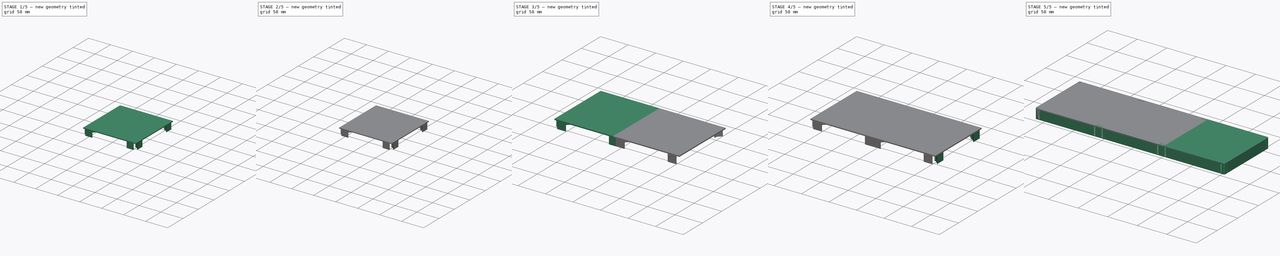
[diagram: build sequence overview — one tinted view per stage of 5, left to right]
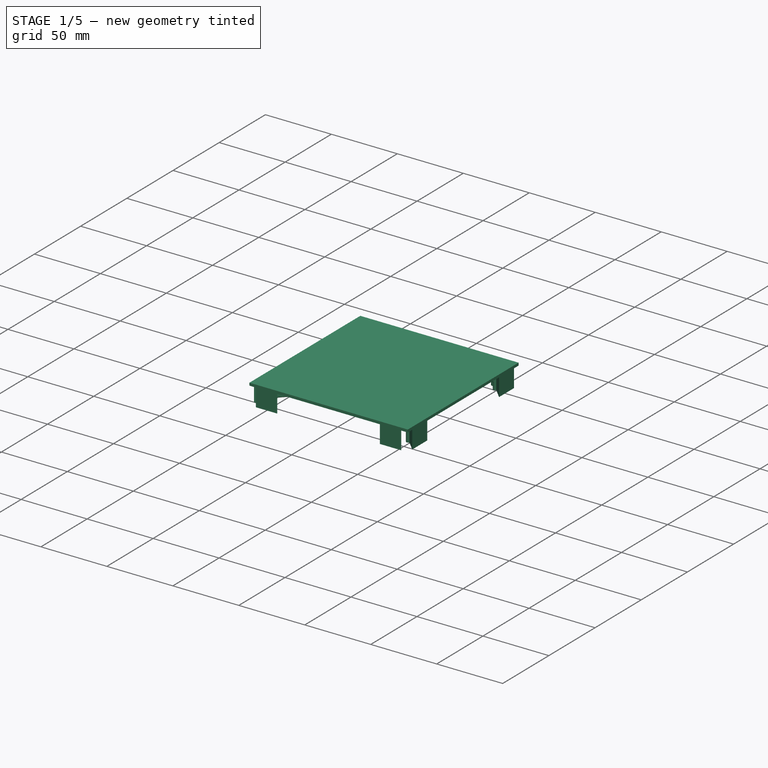
[diagram: stage 1 of 5 — iso view after this stage's code; geometry added in this stage tinted green]
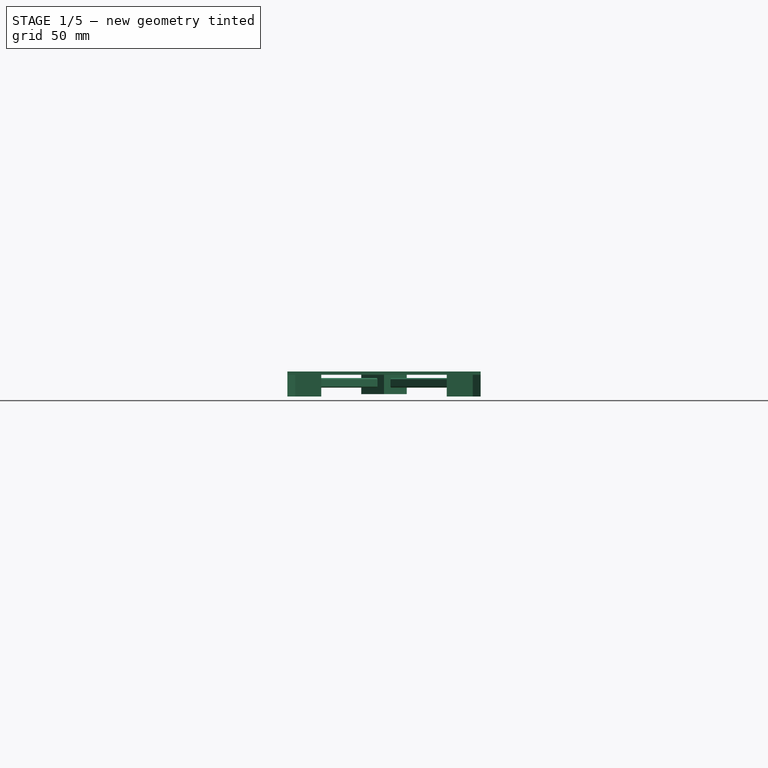
[diagram: stage 1 of 5 — front view after this stage's code; geometry added in this stage tinted green]
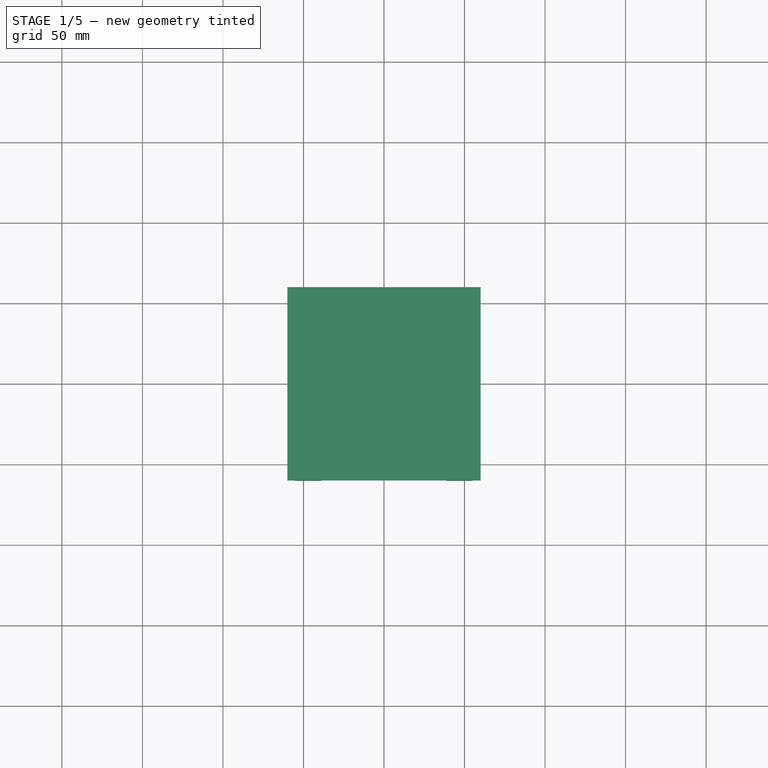
[diagram: stage 1 of 5 — top view after this stage's code; geometry added in this stage tinted green]
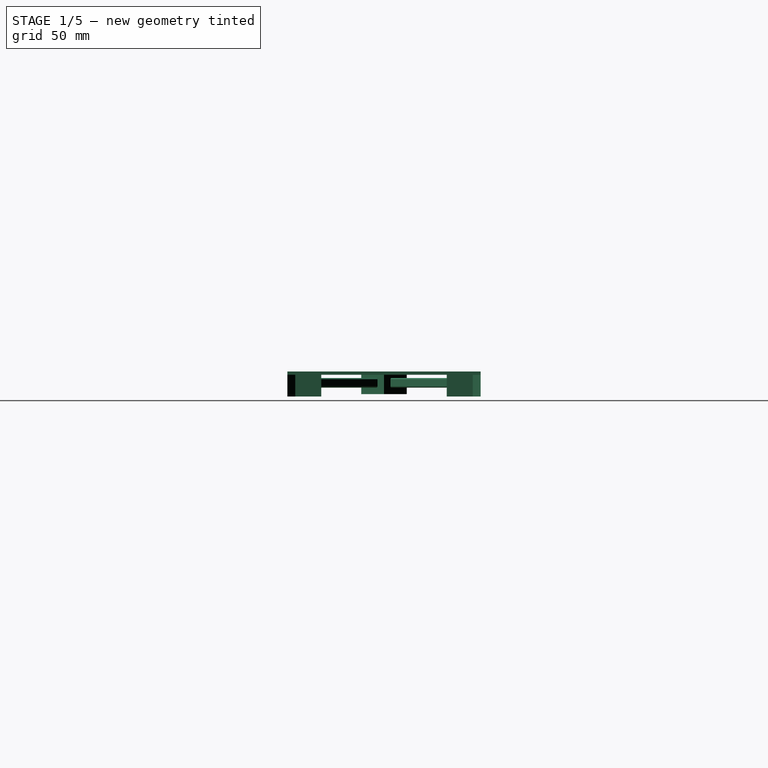
[diagram: stage 1 of 5 — right view after this stage's code; geometry added in this stage tinted green]
FCSTD DOCUMENT  (FreeCAD 0.18R4 (GitTag))
Label: Grid_keyboard
License: All rights reserved
LicenseURL: http://en.wikipedia.org/wiki/All_rights_reserved
objects: Sketcher::SketchObject×31, PartDesign::Pad×26, PartDesign::PolarPattern×12, PartDesign::Chamfer×12, PartDesign::Body×8, PartDesign::Boolean×6, PartDesign::Pocket×4, App::VRMLObject×1, PartDesign::Fillet×1, PartDesign::Hole×1, PartDesign::Mirrored×1
note: 133 computed .brp shape members not serialized (recipe doc carries the construction recipe); baked Part::Feature solids carry a one-line shape summary decoded from their .brp

FEATURE [PartDesign::Body] Body002  label="feature_magent_hole"
  Group = -> [Sketch007,Pad002,Sketch008,Pad003,PolarPattern,Sketch002,Pad004,Sketch003,Pad005,PolarPattern001,Chamfer,Chamfer001,Boolean,Sketch013,Pocket001]
  Origin = -> Origin002
  Placement = pos=(106.68,0,0) rot=(0,0,1;0rad)
  Tip = -> Pocket001
FEATURE [Sketcher::SketchObject] Sketch018
  MapMode = 5
  Support = -> [XY_Plane004]
  sketch-geometry (5):
    g0: LineSegment StartX=-60 StartY=60 StartZ=0 EndX=-60 EndY=-60 EndZ=0
    g1: LineSegment StartX=-60 StartY=-60 StartZ=0 EndX=60 EndY=-60 EndZ=0
    g2: LineSegment StartX=60 StartY=-60 StartZ=0 EndX=60 EndY=60 EndZ=0
    g3: LineSegment StartX=60 StartY=60 StartZ=0 EndX=-60 EndY=60 EndZ=0
    g4: Circle [constr] CenterX=0 CenterY=0 CenterZ=0 NormalX=0 NormalY=0 NormalZ=1 AngleXU=0 Radius=84.8528
  constraints (14):
    c: Coincident(g0,g1)
    c: Coincident(g1,g2)
    c: Coincident(g2,g3)
    c: Coincident(g3,g0)
    c: Equal(g0,g1)
    c: Equal(g0,g2)
    c: Equal(g0,g3)
    c: PointOnObject(g0,g4)
    c: PointOnObject(g1,g4)
    c: PointOnObject(g2,g4)
    c: PointOnObject(g3,g4)
    c: Coincident(g4,g-1)
    c: Horizontal(g3)
    c: DistanceX(g3,g3) = 120
FEATURE [PartDesign::Pad] Pad013
  Length = 2
  Length2 = 100
  Profile = -> Sketch018
  Refine = true
  Type = 0
FEATURE [Sketcher::SketchObject] Sketch020
  MapMode = 5
  Support = -> [XY_Plane005]
  sketch-geometry (5):
    g0: LineSegment StartX=-60 StartY=60 StartZ=0 EndX=-60 EndY=-60 EndZ=0
    g1: LineSegment StartX=-60 StartY=-60 StartZ=0 EndX=60 EndY=-60 EndZ=0
    g2: LineSegment StartX=60 StartY=-60 StartZ=0 EndX=60 EndY=60 EndZ=0
    g3: LineSegment StartX=60 StartY=60 StartZ=0 EndX=-60 EndY=60 EndZ=0
    g4: Circle [constr] CenterX=0 CenterY=0 CenterZ=0 NormalX=0 NormalY=0 NormalZ=1 AngleXU=0 Radius=84.8528
  constraints (14):
    c: Coincident(g0,g1)
    c: Coincident(g1,g2)
    c: Coincident(g2,g3)
    c: Coincident(g3,g0)
    c: Equal(g0,g1)
    c: Equal(g0,g2)
    c: Equal(g0,g3)
    c: PointOnObject(g0,g4)
    c: PointOnObject(g1,g4)
    c: PointOnObject(g2,g4)
    c: PointOnObject(g3,g4)
    c: Coincident(g4,g-1)
    c: Horizontal(g3)
    c: DistanceX(g3,g3) = 120
FEATURE [PartDesign::Pad] Pad017
  Length = 2
  Length2 = 100
  Profile = -> Sketch020
  Refine = true
  Type = 0
FEATURE [Sketcher::SketchObject] Sketch019
  ExternalGeometry = -> [Pad017]
  MapMode = 5
  Placement = pos=(0,0,0) rot=(1,0,0;3.14159rad)
  Support = -> [Pad017]
  expr: Constraints[34] = 3 + 0.15
  expr: Constraints[8] = 53.3 - 1.5 - 0.35
  sketch-geometry (12):
    g0: LineSegment StartX=-55.0741 StartY=60 StartZ=0 EndX=-38.9259 EndY=60 EndZ=0
    g1: LineSegment StartX=-55.0741 StartY=60 StartZ=0 EndX=-47.85 EndY=52.7759 EndZ=0
    g2: LineSegment StartX=-38.9259 StartY=60 StartZ=0 EndX=-46.15 EndY=52.7759 EndZ=0
    g3: ArcOfCircle CenterX=-47 CenterY=51.45 CenterZ=0 NormalX=0 NormalY=0 NormalZ=1 AngleXU=0 Radius=1.575 StartAngle=2.14086 EndAngle=7.28392
    g4: LineSegment [constr] StartX=-47.85 StartY=52.7759 StartZ=0 EndX=-46.15 EndY=52.7759 EndZ=0
    g5: LineSegment StartX=38.9259 StartY=60 StartZ=0 EndX=46.15 EndY=52.7759 EndZ=0
    g6: LineSegment StartX=55.0741 StartY=60 StartZ=0 EndX=47.85 EndY=52.7759 EndZ=0
    g7: LineSegment StartX=38.9259 StartY=60 StartZ=0 EndX=55.0741 EndY=60 EndZ=0
    g8: LineSegment [constr] StartX=46.15 StartY=52.7759 StartZ=0 EndX=47.85 EndY=52.7759 EndZ=0
    g9: ArcOfCircle CenterX=47 CenterY=51.45 CenterZ=0 NormalX=0 NormalY=0 NormalZ=1 AngleXU=0 Radius=1.575 StartAngle=2.14086 EndAngle=7.28392
    g10: LineSegment [constr] StartX=-47 StartY=51.45 StartZ=0 EndX=0 EndY=51.45 EndZ=0
    g11: LineSegment [constr] StartX=0 StartY=51.45 StartZ=0 EndX=47 EndY=51.45 EndZ=0
  constraints (35):
    c: PointOnObject(g0,g-3)
    c: PointOnObject(g0,g-3)
    c: Coincident(g1,g0)
    c: Coincident(g2,g0)
    c: Coincident(g3,g1)
    c: Coincident(g3,g2)
    c: Coincident(g4,g1)
    c: Coincident(g4,g2)
    c: DistanceY(g-1,g3) = 51.45
    c: PointOnObject(g5,g-3)
    c: PointOnObject(g6,g-3)
    c: Coincident(g7,g5)
    c: Coincident(g7,g6)
    c: Coincident(g8,g5)
    c: Coincident(g8,g6)
    c: Horizontal(g8)
    c: Coincident(g9,g5)
    c: Coincident(g9,g6)
    c: Equal(g3,g9)
    c: Coincident(g10,g3)
    c: PointOnObject(g10,g-2)
    c: Horizontal(g10)
    c: Coincident(g11,g10)
    c: Coincident(g11,g9)
    c: Equal(g10,g11)
    c: DistanceX(g3,g9) = 94
    c: Equal(g2,g1)
    c: DistanceX(g4,g4) = 1.7
    c: Horizontal(g4)
    c: Angle(g1,g0) = 0.785398
    c: Horizontal(g11)
    c: Equal(g8,g4)
    c: Equal(g6,g5)
    c: Equal(g5,g2)
    c: Diameter(g3) = 3.15
FEATURE [PartDesign::Pad] Pad010
  BaseFeature = -> Pad017
  Length = 13.5
  Length2 = 100
  Profile = -> Sketch019
  Refine = true
  Type = 0
FEATURE [PartDesign::PolarPattern] PolarPattern007
  Angle = 360
  Axis = -> Z_Axis005
  BaseFeature = -> Pad010
  Occurrences = 4
  Originals = -> [Pad010]
  Refine = true
FEATURE [Sketcher::SketchObject] Sketch015
  MapMode = 5
  Placement = pos=(0,0,0) rot=(1,0,0;3.14159rad)
  Support = -> [PolarPattern007]
  sketch-geometry (5):
    g0: LineSegment StartX=0 StartY=14.1421 StartZ=0 EndX=-14.1421 EndY=-7.46e-14 EndZ=0
    g1: LineSegment StartX=-14.1421 StartY=-7.46e-14 StartZ=0 EndX=1.42e-14 EndY=-14.1421 EndZ=0
    g2: LineSegment StartX=1.42e-14 StartY=-14.1421 StartZ=0 EndX=14.1421 EndY=-7.1e-15 EndZ=0
    g3: LineSegment StartX=14.1421 StartY=-7.1e-15 StartZ=0 EndX=0 EndY=14.1421 EndZ=0
    g4: Circle [constr] CenterX=0 CenterY=0 CenterZ=0 NormalX=0 NormalY=0 NormalZ=1 AngleXU=0 Radius=14.1421
  constraints (14):
    c: Coincident(g0,g1)
    c: Coincident(g1,g2)
    c: Coincident(g2,g3)
    c: Coincident(g3,g0)
    c: Equal(g0,g1)
    c: Equal(g0,g2)
    c: Equal(g0,g3)
    c: PointOnObject(g0,g4)
    c: PointOnObject(g1,g4)
    c: PointOnObject(g2,g4)
    c: PointOnObject(g3,g4)
    c: Coincident(g4,g-1)
    c: PointOnObject(g0,g-2)
    c: Distance(g0) = 20
FEATURE [PartDesign::Pad] Pad012
  BaseFeature = -> PolarPattern007
  Length = 12
  Length2 = 100
  Profile = -> Sketch015
  Refine = true
  Type = 0
FEATURE [Sketcher::SketchObject] Sketch017
  MapMode = 5
  Placement = pos=(7.07107,7.07107,0) rot=(0.281085,0.678598,0.678598;2.59356rad)
  Support = -> [Pad012]
  sketch-geometry (8):
    g0: ArcOfCircle CenterX=-3.325 CenterY=-3 CenterZ=0 NormalX=0 NormalY=0 NormalZ=1 AngleXU=0 Radius=1 StartAngle=2e-16 EndAngle=3.14159
    g1: ArcOfCircle CenterX=-3.325 CenterY=-7 CenterZ=0 NormalX=0 NormalY=0 NormalZ=1 AngleXU=0 Radius=1 StartAngle=3.14159 EndAngle=6.28319
    g2: LineSegment StartX=-4.325 StartY=-3 StartZ=0 EndX=-4.325 EndY=-7 EndZ=0
    g3: LineSegment StartX=-2.325 StartY=-3 StartZ=0 EndX=-2.325 EndY=-7 EndZ=0
    g4: ArcOfCircle CenterX=3.325 CenterY=-3 CenterZ=0 NormalX=0 NormalY=0 NormalZ=1 AngleXU=0 Radius=1 StartAngle=3e-16 EndAngle=3.14159
    g5: ArcOfCircle CenterX=3.325 CenterY=-7 CenterZ=0 NormalX=0 NormalY=0 NormalZ=1 AngleXU=0 Radius=1 StartAngle=3.14159 EndAngle=6.28319
    g6: LineSegment StartX=2.325 StartY=-3 StartZ=0 EndX=2.325 EndY=-7 EndZ=0
    g7: LineSegment StartX=4.325 StartY=-3 StartZ=0 EndX=4.325 EndY=-7 EndZ=0
  constraints (18):
    c: Tangent(g0,g3) = 1.5708
    c: Tangent(g0,g2) = -1.5708
    c: Tangent(g2,g1) = -1.5708
    c: Tangent(g3,g1) = 1.5708
    c: Vertical(g2)
    c: Equal(g0,g1)
    c: Tangent(g4,g7) = 1.5708
    c: Tangent(g4,g6) = -1.5708
    c: Tangent(g6,g5) = -1.5708
    c: Tangent(g7,g5) = 1.5708
    c: Equal(g4,g5)
    c: Symmetric(g0,g4,g-2)
    c: Symmetric(g5,g1,g-2)
    c: Radius(g5) = 1
    c: Equal(g5,g1)
    c: DistanceY(g3,g3) = 4
    c: DistanceX(g0,g-1) = 3.325
    c: DistanceY(g0,g-1) = 3
FEATURE [PartDesign::Pad] Pad011
  BaseFeature = -> Pad012
  Length = 60
  Length2 = 100
  Profile = -> Sketch017
  Refine = true
  Type = 0
FEATURE [Sketcher::SketchObject] Sketch021
  ExternalGeometry = -> [Pad013]
  MapMode = 5
  Placement = pos=(0,0,0) rot=(1,0,0;3.14159rad)
  Support = -> [Pad013]
  expr: Constraints[34] = 3 + 0.15
  expr: Constraints[8] = 53.3 - 1.5 - 0.35
  sketch-geometry (12):
    g0: LineSegment StartX=-55.0741 StartY=60 StartZ=0 EndX=-38.9259 EndY=60 EndZ=0
    g1: LineSegment StartX=-55.0741 StartY=60 StartZ=0 EndX=-47.85 EndY=52.7759 EndZ=0
    g2: LineSegment StartX=-38.9259 StartY=60 StartZ=0 EndX=-46.15 EndY=52.7759 EndZ=0
    g3: ArcOfCircle CenterX=-47 CenterY=51.45 CenterZ=0 NormalX=0 NormalY=0 NormalZ=1 AngleXU=0 Radius=1.575 StartAngle=2.14086 EndAngle=7.28392
    g4: LineSegment [constr] StartX=-47.85 StartY=52.7759 StartZ=0 EndX=-46.15 EndY=52.7759 EndZ=0
    g5: LineSegment StartX=38.9259 StartY=60 StartZ=0 EndX=46.15 EndY=52.7759 EndZ=0
    g6: LineSegment StartX=55.0741 StartY=60 StartZ=0 EndX=47.85 EndY=52.7759 EndZ=0
    g7: LineSegment StartX=38.9259 StartY=60 StartZ=0 EndX=55.0741 EndY=60 EndZ=0
    g8: LineSegment [constr] StartX=46.15 StartY=52.7759 StartZ=0 EndX=47.85 EndY=52.7759 EndZ=0
    g9: ArcOfCircle CenterX=47 CenterY=51.45 CenterZ=0 NormalX=0 NormalY=0 NormalZ=1 AngleXU=0 Radius=1.575 StartAngle=2.14086 EndAngle=7.28392
    g10: LineSegment [constr] StartX=-47 StartY=51.45 StartZ=0 EndX=0 EndY=51.45 EndZ=0
    g11: LineSegment [constr] StartX=0 StartY=51.45 StartZ=0 EndX=47 EndY=51.45 EndZ=0
  constraints (35):
    c: PointOnObject(g0,g-3)
    c: PointOnObject(g0,g-3)
    c: Coincident(g1,g0)
    c: Coincident(g2,g0)
    c: Coincident(g3,g1)
    c: Coincident(g3,g2)
    c: Coincident(g4,g1)
    c: Coincident(g4,g2)
    c: DistanceY(g-1,g3) = 51.45
    c: PointOnObject(g5,g-3)
    c: PointOnObject(g6,g-3)
    c: Coincident(g7,g5)
    c: Coincident(g7,g6)
    c: Coincident(g8,g5)
    c: Coincident(g8,g6)
    c: Horizontal(g8)
    c: Coincident(g9,g5)
    c: Coincident(g9,g6)
    c: Equal(g3,g9)
    c: Coincident(g10,g3)
    c: PointOnObject(g10,g-2)
    c: Horizontal(g10)
    c: Coincident(g11,g10)
    c: Coincident(g11,g9)
    c: Equal(g10,g11)
    c: DistanceX(g3,g9) = 94
    c: Equal(g2,g1)
    c: DistanceX(g4,g4) = 1.7
    c: Horizontal(g4)
    c: Angle(g1,g0) = 0.785398
    c: Horizontal(g11)
    c: Equal(g8,g4)
    c: Equal(g6,g5)
    c: Equal(g5,g2)
    c: Diameter(g3) = 3.15
FEATURE [PartDesign::Pad] Pad014
  BaseFeature = -> Pad013
  Length = 13.5
  Length2 = 100
  Profile = -> Sketch021
  Refine = true
  Type = 0
FEATURE [PartDesign::PolarPattern] PolarPattern005
  Angle = 360
  Axis = -> Z_Axis004
  BaseFeature = -> Pad014
  Occurrences = 4
  Originals = -> [Pad014]
  Refine = true
FEATURE [Sketcher::SketchObject] Sketch014
  MapMode = 5
  Placement = pos=(0,0,0) rot=(1,0,0;3.14159rad)
  Support = -> [PolarPattern005]
  sketch-geometry (5):
    g0: LineSegment StartX=0 StartY=14.1421 StartZ=0 EndX=-14.1421 EndY=-7.46e-14 EndZ=0
    g1: LineSegment StartX=-14.1421 StartY=-7.46e-14 StartZ=0 EndX=1.42e-14 EndY=-14.1421 EndZ=0
    g2: LineSegment StartX=1.42e-14 StartY=-14.1421 StartZ=0 EndX=14.1421 EndY=-7.1e-15 EndZ=0
    g3: LineSegment StartX=14.1421 StartY=-7.1e-15 StartZ=0 EndX=0 EndY=14.1421 EndZ=0
    g4: Circle [constr] CenterX=0 CenterY=0 CenterZ=0 NormalX=0 NormalY=0 NormalZ=1 AngleXU=0 Radius=14.1421
  constraints (14):
    c: Coincident(g0,g1)
    c: Coincident(g1,g2)
    c: Coincident(g2,g3)
    c: Coincident(g3,g0)
    c: Equal(g0,g1)
    c: Equal(g0,g2)
    c: Equal(g0,g3)
    c: PointOnObject(g0,g4)
    c: PointOnObject(g1,g4)
    c: PointOnObject(g2,g4)
    c: PointOnObject(g3,g4)
    c: Coincident(g4,g-1)
    c: PointOnObject(g0,g-2)
    c: Distance(g0) = 20
FEATURE [PartDesign::Pad] Pad016
  BaseFeature = -> PolarPattern005
  Length = 12
  Length2 = 100
  Profile = -> Sketch014
  Refine = true
  Type = 0
FEATURE [Sketcher::SketchObject] Sketch016
  MapMode = 5
  Placement = pos=(7.07107,7.07107,0) rot=(0.281085,0.678598,0.678598;2.59356rad)
  Support = -> [Pad016]
  sketch-geometry (8):
    g0: ArcOfCircle CenterX=-3.325 CenterY=-3 CenterZ=0 NormalX=0 NormalY=0 NormalZ=1 AngleXU=0 Radius=1 StartAngle=2e-16 EndAngle=3.14159
    g1: ArcOfCircle CenterX=-3.325 CenterY=-7 CenterZ=0 NormalX=0 NormalY=0 NormalZ=1 AngleXU=0 Radius=1 StartAngle=3.14159 EndAngle=6.28319
    g2: LineSegment StartX=-4.325 StartY=-3 StartZ=0 EndX=-4.325 EndY=-7 EndZ=0
    g3: LineSegment StartX=-2.325 StartY=-3 StartZ=0 EndX=-2.325 EndY=-7 EndZ=0
    g4: ArcOfCircle CenterX=3.325 CenterY=-3 CenterZ=0 NormalX=0 NormalY=0 NormalZ=1 AngleXU=0 Radius=1 StartAngle=3e-16 EndAngle=3.14159
    g5: ArcOfCircle CenterX=3.325 CenterY=-7 CenterZ=0 NormalX=0 NormalY=0 NormalZ=1 AngleXU=0 Radius=1 StartAngle=3.14159 EndAngle=6.28319
    g6: LineSegment StartX=2.325 StartY=-3 StartZ=0 EndX=2.325 EndY=-7 EndZ=0
    g7: LineSegment StartX=4.325 StartY=-3 StartZ=0 EndX=4.325 EndY=-7 EndZ=0
  constraints (18):
    c: Tangent(g0,g3) = 1.5708
    c: Tangent(g0,g2) = -1.5708
    c: Tangent(g2,g1) = -1.5708
    c: Tangent(g3,g1) = 1.5708
    c: Vertical(g2)
    c: Equal(g0,g1)
    c: Tangent(g4,g7) = 1.5708
    c: Tangent(g4,g6) = -1.5708
    c: Tangent(g6,g5) = -1.5708
    c: Tangent(g7,g5) = 1.5708
    c: Equal(g4,g5)
    c: Symmetric(g0,g4,g-2)
    c: Symmetric(g5,g1,g-2)
    c: Radius(g5) = 1
    c: Equal(g5,g1)
    c: DistanceY(g3,g3) = 4
    c: DistanceX(g0,g-1) = 3.325
    c: DistanceY(g0,g-1) = 3
FEATURE [PartDesign::Pad] Pad015
  BaseFeature = -> Pad016
  Length = 60
  Length2 = 100
  Profile = -> Sketch016
  Refine = true
  Type = 0
FEATURE [PartDesign::PolarPattern] PolarPattern004
  Angle = 360
  Axis = -> Z_Axis004
  BaseFeature = -> Pad015
  Occurrences = 4
  Originals = -> [Pad015]
  Refine = true
FEATURE [PartDesign::Chamfer] Chamfer005
  Base = -> PolarPattern004 [Edge101,Edge94,Edge103,Edge114,Edge125,Edge132,Edge84,Edge85,Edge59,Edge60,Edge91,Edge89,Edge64,Edge66,Edge123,Edge113]
  BaseFeature = -> PolarPattern004
  Size = 0.5
FEATURE [PartDesign::Body] Body004  label="feature_magent_hole002"
  Group = -> [Sketch020,Pad017,Sketch019,Pad010,PolarPattern007,Sketch015,Pad012,Sketch017,Pad011,PolarPattern006,Chamfer006,Chamfer004]
  Origin = -> Origin005
  Tip = -> Chamfer004
FEATURE [PartDesign::Chamfer] Chamfer007
  Base = -> Chamfer005 [Edge156,Edge175,Edge141,Edge117,Edge170,Edge188,Edge104,Edge202]
  BaseFeature = -> Chamfer005
  Size = 0.5
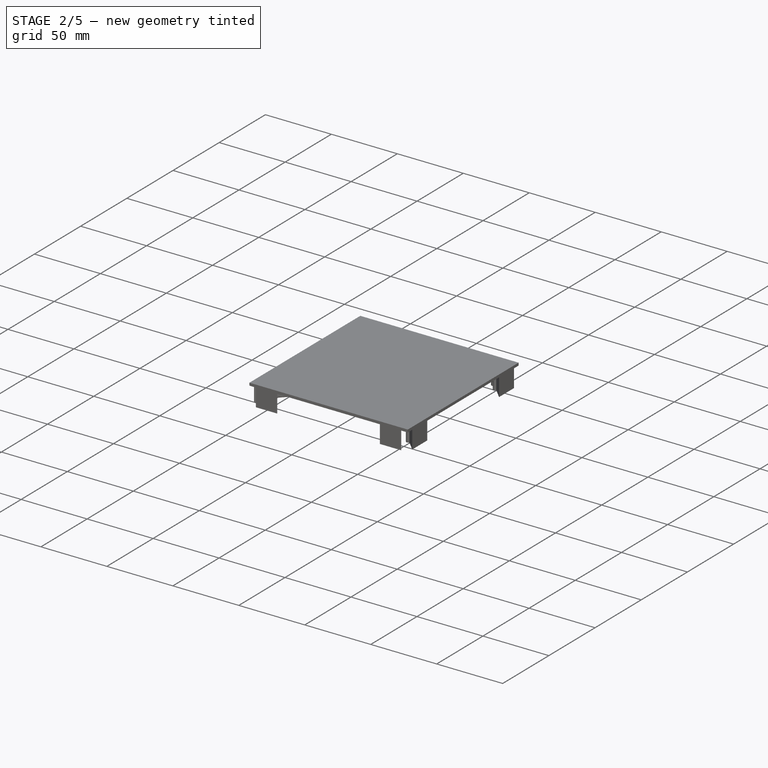
[diagram: stage 2 of 5 — iso view after this stage's code; geometry added in this stage tinted green]
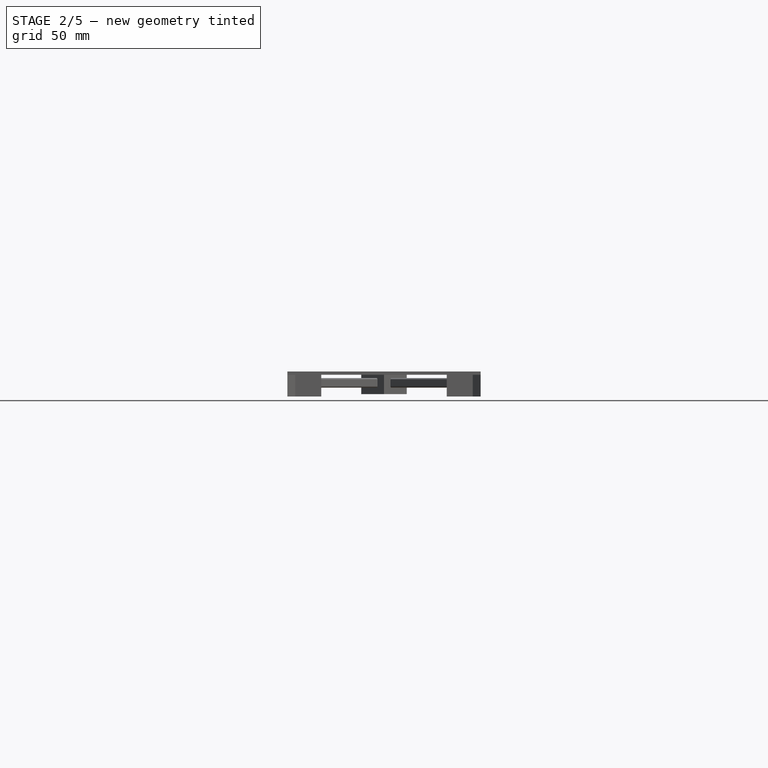
[diagram: stage 2 of 5 — front view after this stage's code; geometry added in this stage tinted green]
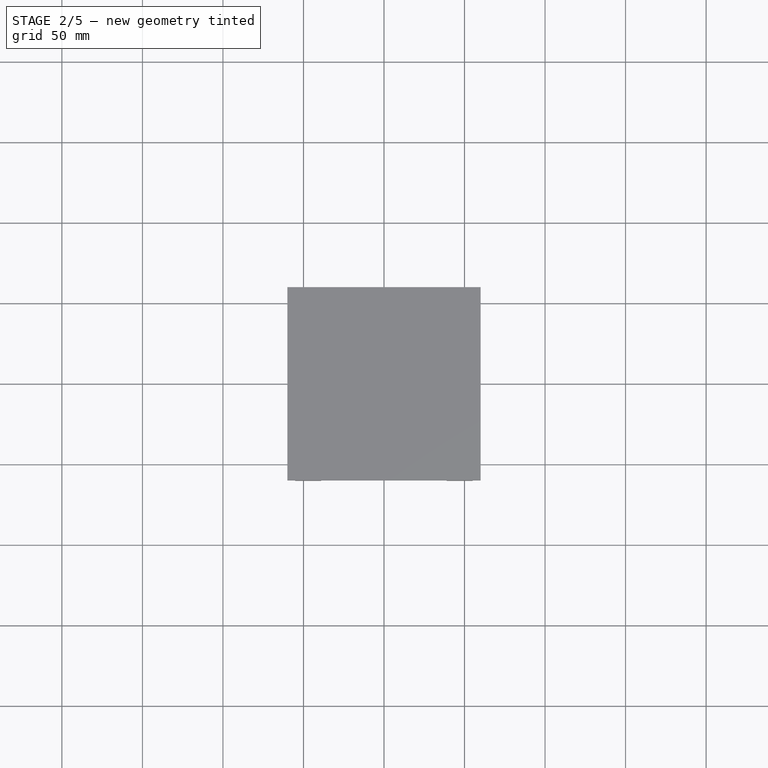
[diagram: stage 2 of 5 — top view after this stage's code; geometry added in this stage tinted green]
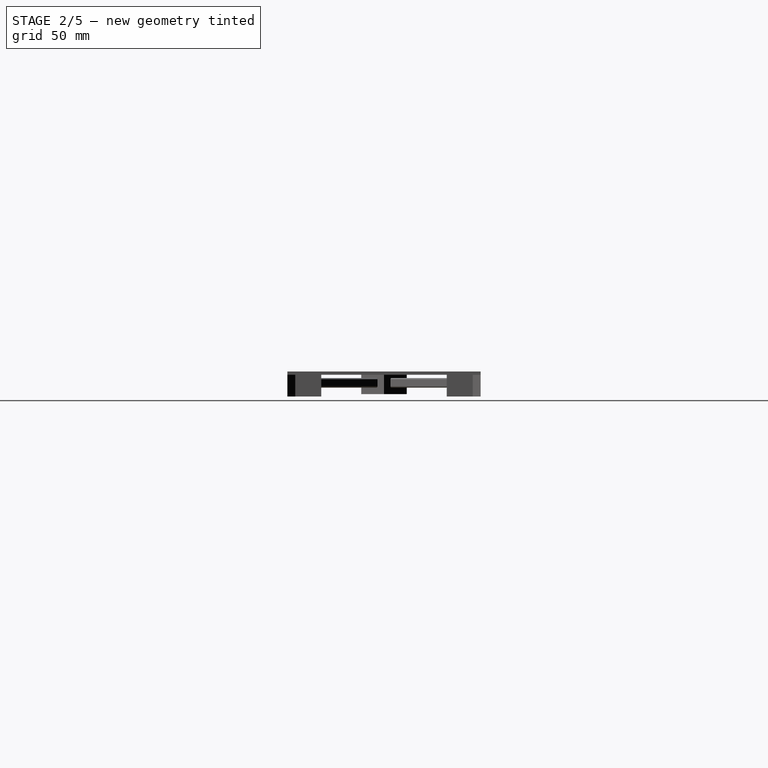
[diagram: stage 2 of 5 — right view after this stage's code; geometry added in this stage tinted green]
FEATURE [PartDesign::PolarPattern] PolarPattern006
  Angle = 360
  Axis = -> Z_Axis005
  BaseFeature = -> Pad011
  Occurrences = 4
  Originals = -> [Pad011]
  Refine = true
FEATURE [PartDesign::Chamfer] Chamfer006
  Base = -> PolarPattern006 [Edge101,Edge94,Edge103,Edge114,Edge125,Edge132,Edge84,Edge85,Edge59,Edge60,Edge91,Edge89,Edge64,Edge66,Edge123,Edge113]
  BaseFeature = -> PolarPattern006
  Size = 0.5
FEATURE [PartDesign::Chamfer] Chamfer004
  Base = -> Chamfer006 [Edge156,Edge175,Edge141,Edge117,Edge170,Edge188,Edge104,Edge202]
  BaseFeature = -> Chamfer006
  Size = 0.5
FEATURE [PartDesign::Boolean] Boolean001
  BaseFeature = -> Chamfer007
  Group = -> [Body004]
  Type = 0
FEATURE [Sketcher::SketchObject] Sketch022
  MapMode = 5
  Placement = pos=(0,0,0) rot=(1,0,0;3.14159rad)
  Support = -> [Boolean001]
  sketch-geometry (3):
    g0: LineSegment StartX=-88.9042 StartY=88.9042 StartZ=0 EndX=0 EndY=0 EndZ=0
    g1: LineSegment StartX=0 StartY=0 StartZ=0 EndX=-88.9042 EndY=-88.9042 EndZ=0
    g2: LineSegment StartX=-88.9042 StartY=-88.9042 StartZ=0 EndX=-88.9042 EndY=88.9042 EndZ=0
  constraints (7):
    c: Coincident(g0,g-1)
    c: Coincident(g0,g1)
    c: Coincident(g1,g2)
    c: Coincident(g2,g0)
    c: Vertical(g2)
    c: Angle(g-1,g0) = 2.35619
    c: Perpendicular(g0,g1)
FEATURE [Sketcher::SketchObject] Sketch027
  MapMode = 5
  Support = -> [XY_Plane006]
  sketch-geometry (5):
    g0: LineSegment StartX=-60 StartY=60 StartZ=0 EndX=-60 EndY=-60 EndZ=0
    g1: LineSegment StartX=-60 StartY=-60 StartZ=0 EndX=60 EndY=-60 EndZ=0
    g2: LineSegment StartX=60 StartY=-60 StartZ=0 EndX=60 EndY=60 EndZ=0
    g3: LineSegment StartX=60 StartY=60 StartZ=0 EndX=-60 EndY=60 EndZ=0
    g4: Circle [constr] CenterX=0 CenterY=0 CenterZ=0 NormalX=0 NormalY=0 NormalZ=1 AngleXU=0 Radius=84.8528
  constraints (14):
    c: Coincident(g0,g1)
    c: Coincident(g1,g2)
    c: Coincident(g2,g3)
    c: Coincident(g3,g0)
    c: Equal(g0,g1)
    c: Equal(g0,g2)
    c: Equal(g0,g3)
    c: PointOnObject(g0,g4)
    c: PointOnObject(g1,g4)
    c: PointOnObject(g2,g4)
    c: PointOnObject(g3,g4)
    c: Coincident(g4,g-1)
    c: Horizontal(g3)
    c: DistanceX(g3,g3) = 120
FEATURE [PartDesign::Pad] Pad021
  Length = 2
  Length2 = 100
  Profile = -> Sketch027
  Refine = true
  Type = 0
FEATURE [Sketcher::SketchObject] Sketch030
  ExternalGeometry = -> [Pad021]
  MapMode = 5
  Placement = pos=(0,0,0) rot=(1,0,0;3.14159rad)
  Support = -> [Pad021]
  expr: Constraints[34] = 3 + 0.15
  expr: Constraints[8] = 53.3 - 1.5 - 0.35
  sketch-geometry (12):
    g0: LineSegment StartX=-55.0741 StartY=60 StartZ=0 EndX=-38.9259 EndY=60 EndZ=0
    g1: LineSegment StartX=-55.0741 StartY=60 StartZ=0 EndX=-47.85 EndY=52.7759 EndZ=0
    g2: LineSegment StartX=-38.9259 StartY=60 StartZ=0 EndX=-46.15 EndY=52.7759 EndZ=0
    g3: ArcOfCircle CenterX=-47 CenterY=51.45 CenterZ=0 NormalX=0 NormalY=0 NormalZ=1 AngleXU=0 Radius=1.575 StartAngle=2.14086 EndAngle=7.28392
    g4: LineSegment [constr] StartX=-47.85 StartY=52.7759 StartZ=0 EndX=-46.15 EndY=52.7759 EndZ=0
    g5: LineSegment StartX=38.9259 StartY=60 StartZ=0 EndX=46.15 EndY=52.7759 EndZ=0
    g6: LineSegment StartX=55.0741 StartY=60 StartZ=0 EndX=47.85 EndY=52.7759 EndZ=0
    g7: LineSegment StartX=38.9259 StartY=60 StartZ=0 EndX=55.0741 EndY=60 EndZ=0
    g8: LineSegment [constr] StartX=46.15 StartY=52.7759 StartZ=0 EndX=47.85 EndY=52.7759 EndZ=0
    g9: ArcOfCircle CenterX=47 CenterY=51.45 CenterZ=0 NormalX=0 NormalY=0 NormalZ=1 AngleXU=0 Radius=1.575 StartAngle=2.14086 EndAngle=7.28392
    g10: LineSegment [constr] StartX=-47 StartY=51.45 StartZ=0 EndX=0 EndY=51.45 EndZ=0
    g11: LineSegment [constr] StartX=0 StartY=51.45 StartZ=0 EndX=47 EndY=51.45 EndZ=0
  constraints (35):
    c: PointOnObject(g0,g-3)
    c: PointOnObject(g0,g-3)
    c: Coincident(g1,g0)
    c: Coincident(g2,g0)
    c: Coincident(g3,g1)
    c: Coincident(g3,g2)
    c: Coincident(g4,g1)
    c: Coincident(g4,g2)
    c: DistanceY(g-1,g3) = 51.45
    c: PointOnObject(g5,g-3)
    c: PointOnObject(g6,g-3)
    c: Coincident(g7,g5)
    c: Coincident(g7,g6)
    c: Coincident(g8,g5)
    c: Coincident(g8,g6)
    c: Horizontal(g8)
    c: Coincident(g9,g5)
    c: Coincident(g9,g6)
    c: Equal(g3,g9)
    c: Coincident(g10,g3)
    c: PointOnObject(g10,g-2)
    c: Horizontal(g10)
    c: Coincident(g11,g10)
    c: Coincident(g11,g9)
    c: Equal(g10,g11)
    c: DistanceX(g3,g9) = 94
    c: Equal(g2,g1)
    c: DistanceX(g4,g4) = 1.7
    c: Horizontal(g4)
    c: Angle(g1,g0) = 0.785398
    c: Horizontal(g11)
    c: Equal(g8,g4)
    c: Equal(g6,g5)
    c: Equal(g5,g2)
    c: Diameter(g3) = 3.15
FEATURE [PartDesign::Pad] Pad022
  BaseFeature = -> Pad021
  Length = 13.5
  Length2 = 100
  Profile = -> Sketch030
  Refine = true
  Type = 0
FEATURE [PartDesign::PolarPattern] PolarPattern009
  Angle = 360
  Axis = -> Z_Axis006
  BaseFeature = -> Pad022
  Occurrences = 4
  Originals = -> [Pad022]
  Refine = true
FEATURE [Sketcher::SketchObject] Sketch023
  MapMode = 5
  Placement = pos=(0,0,0) rot=(1,0,0;3.14159rad)
  Support = -> [PolarPattern009]
  sketch-geometry (5):
    g0: LineSegment StartX=0 StartY=14.1421 StartZ=0 EndX=-14.1421 EndY=-7.46e-14 EndZ=0
    g1: LineSegment StartX=-14.1421 StartY=-7.46e-14 StartZ=0 EndX=1.42e-14 EndY=-14.1421 EndZ=0
    g2: LineSegment StartX=1.42e-14 StartY=-14.1421 StartZ=0 EndX=14.1421 EndY=-7.1e-15 EndZ=0
    g3: LineSegment StartX=14.1421 StartY=-7.1e-15 StartZ=0 EndX=0 EndY=14.1421 EndZ=0
    g4: Circle [constr] CenterX=0 CenterY=0 CenterZ=0 NormalX=0 NormalY=0 NormalZ=1 AngleXU=0 Radius=14.1421
  constraints (14):
    c: Coincident(g0,g1)
    c: Coincident(g1,g2)
    c: Coincident(g2,g3)
    c: Coincident(g3,g0)
    c: Equal(g0,g1)
    c: Equal(g0,g2)
    c: Equal(g0,g3)
    c: PointOnObject(g0,g4)
    c: PointOnObject(g1,g4)
    c: PointOnObject(g2,g4)
    c: PointOnObject(g3,g4)
    c: Coincident(g4,g-1)
    c: PointOnObject(g0,g-2)
    c: Distance(g0) = 20
FEATURE [PartDesign::Pad] Pad024
  BaseFeature = -> PolarPattern009
  Length = 12
  Length2 = 100
  Profile = -> Sketch023
  Refine = true
  Type = 0
FEATURE [Sketcher::SketchObject] Sketch025
  MapMode = 5
  Placement = pos=(7.07107,7.07107,0) rot=(0.281085,0.678598,0.678598;2.59356rad)
  Support = -> [Pad024]
  sketch-geometry (8):
    g0: ArcOfCircle CenterX=-3.325 CenterY=-3 CenterZ=0 NormalX=0 NormalY=0 NormalZ=1 AngleXU=0 Radius=1 StartAngle=2e-16 EndAngle=3.14159
    g1: ArcOfCircle CenterX=-3.325 CenterY=-7 CenterZ=0 NormalX=0 NormalY=0 NormalZ=1 AngleXU=0 Radius=1 StartAngle=3.14159 EndAngle=6.28319
    g2: LineSegment StartX=-4.325 StartY=-3 StartZ=0 EndX=-4.325 EndY=-7 EndZ=0
    g3: LineSegment StartX=-2.325 StartY=-3 StartZ=0 EndX=-2.325 EndY=-7 EndZ=0
    g4: ArcOfCircle CenterX=3.325 CenterY=-3 CenterZ=0 NormalX=0 NormalY=0 NormalZ=1 AngleXU=0 Radius=1 StartAngle=3e-16 EndAngle=3.14159
    g5: ArcOfCircle CenterX=3.325 CenterY=-7 CenterZ=0 NormalX=0 NormalY=0 NormalZ=1 AngleXU=0 Radius=1 StartAngle=3.14159 EndAngle=6.28319
    g6: LineSegment StartX=2.325 StartY=-3 StartZ=0 EndX=2.325 EndY=-7 EndZ=0
    g7: LineSegment StartX=4.325 StartY=-3 StartZ=0 EndX=4.325 EndY=-7 EndZ=0
  constraints (18):
    c: Tangent(g0,g3) = 1.5708
    c: Tangent(g0,g2) = -1.5708
    c: Tangent(g2,g1) = -1.5708
    c: Tangent(g3,g1) = 1.5708
    c: Vertical(g2)
    c: Equal(g0,g1)
    c: Tangent(g4,g7) = 1.5708
    c: Tangent(g4,g6) = -1.5708
    c: Tangent(g6,g5) = -1.5708
    c: Tangent(g7,g5) = 1.5708
    c: Equal(g4,g5)
    c: Symmetric(g0,g4,g-2)
    c: Symmetric(g5,g1,g-2)
    c: Radius(g5) = 1
    c: Equal(g5,g1)
    c: DistanceY(g3,g3) = 4
    c: DistanceX(g0,g-1) = 3.325
    c: DistanceY(g0,g-1) = 3
FEATURE [PartDesign::Pad] Pad023
  BaseFeature = -> Pad024
  Length = 60
  Length2 = 100
  Profile = -> Sketch025
  Refine = true
  Type = 0
FEATURE [PartDesign::PolarPattern] PolarPattern008
  Angle = 360
  Axis = -> Z_Axis006
  BaseFeature = -> Pad023
  Occurrences = 4
  Originals = -> [Pad023]
  Refine = true
FEATURE [PartDesign::Body] Body007  label="feature_magent_hole005"
  Group = -> [Sketch027,Pad021,Sketch030,Pad022,PolarPattern009,Sketch023,Pad024,Sketch025,Pad023,PolarPattern008,Chamfer009,Chamfer011,Boolean002,Sketch031,Pocket002]
  Origin = -> Origin006
  Placement = pos=(-106.68,0,0) rot=(0,0,1;3.14159rad)
  Tip = -> Pocket002
FEATURE [PartDesign::Pocket] Pocket003
  BaseFeature = -> Boolean001
  Length = 5
  Length2 = 100
  Profile = -> Sketch022
  Reversed = true
  Type = 1
FEATURE [PartDesign::Mirrored] Mirrored
  BaseFeature = -> Pocket003
  MirrorPlane = -> YZ_Plane004
  Originals = -> [Pocket003]
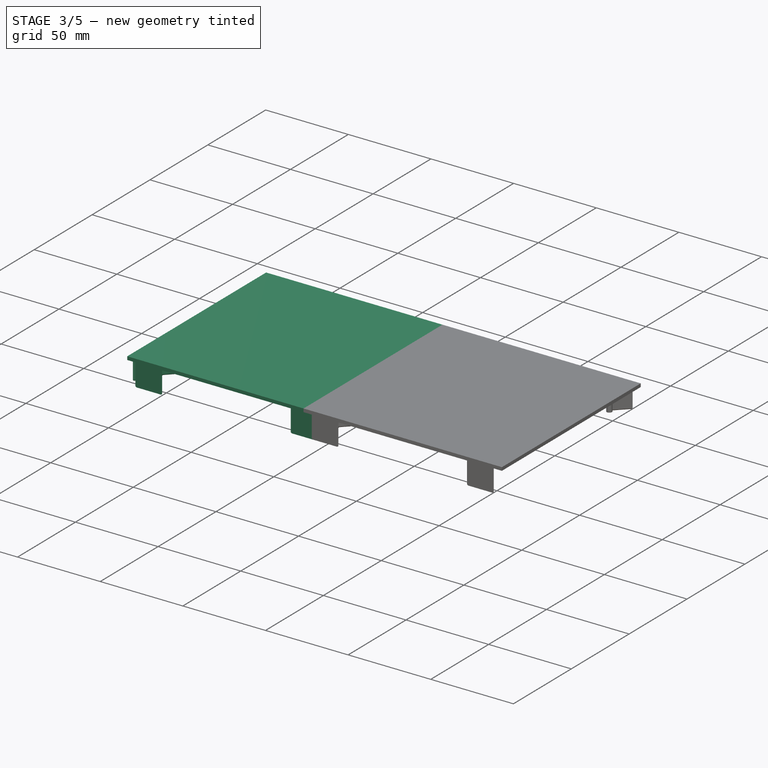
[diagram: stage 3 of 5 — iso view after this stage's code; geometry added in this stage tinted green]
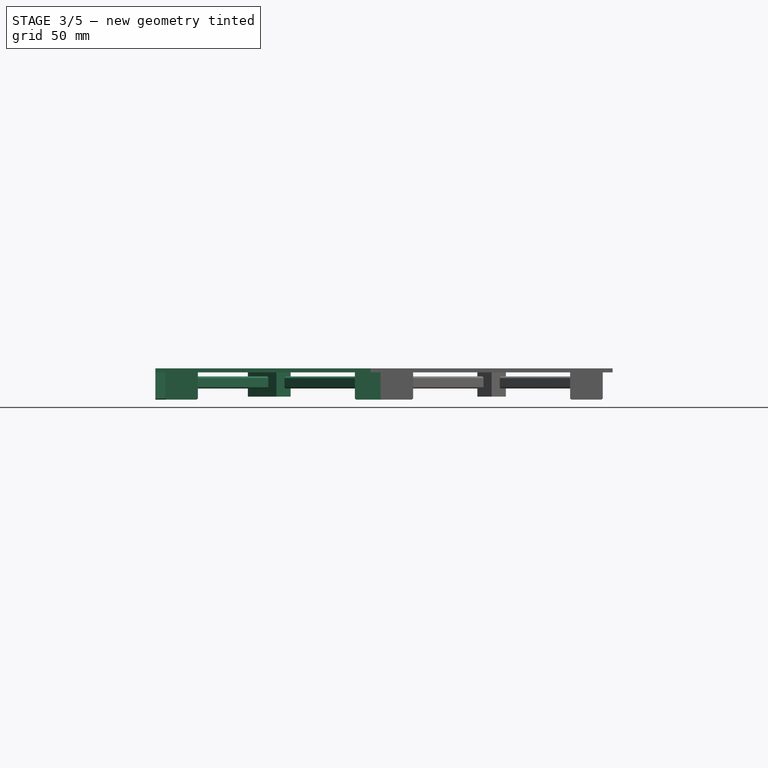
[diagram: stage 3 of 5 — front view after this stage's code; geometry added in this stage tinted green]
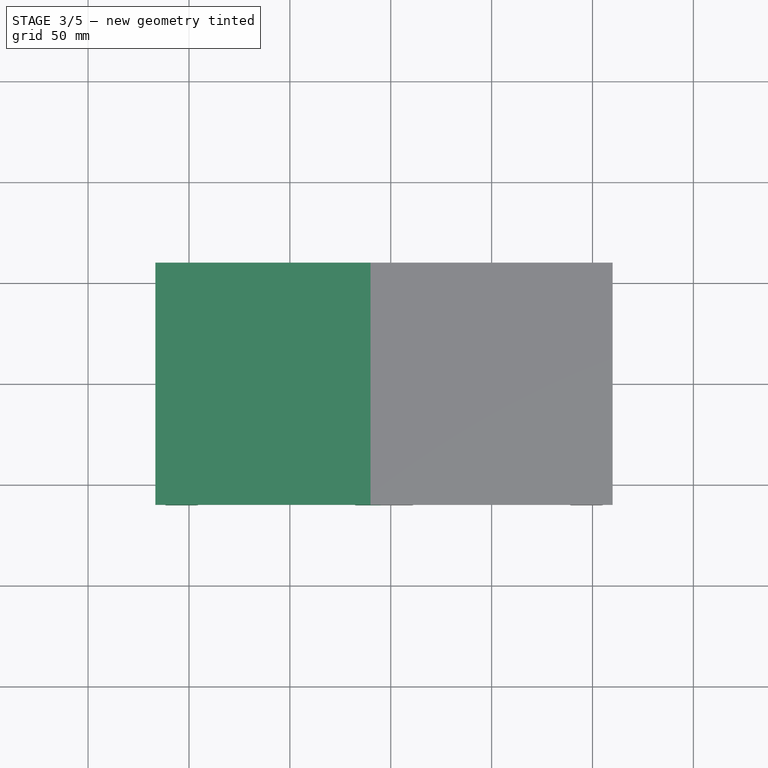
[diagram: stage 3 of 5 — top view after this stage's code; geometry added in this stage tinted green]
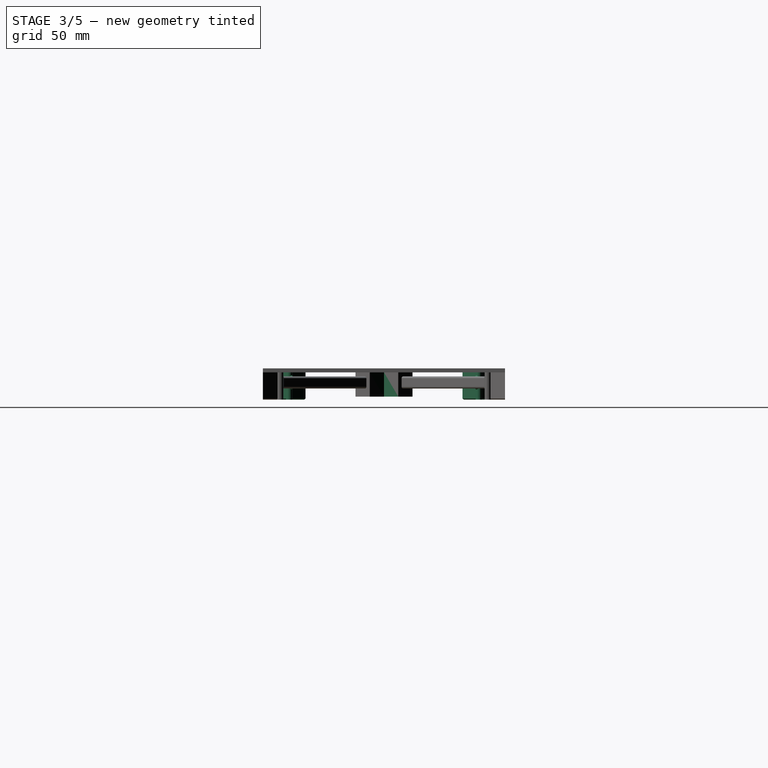
[diagram: stage 3 of 5 — right view after this stage's code; geometry added in this stage tinted green]
FEATURE [Sketcher::SketchObject] Sketch029
  MapMode = 5
  Support = -> [XY_Plane007]
  sketch-geometry (5):
    g0: LineSegment StartX=-60 StartY=60 StartZ=0 EndX=-60 EndY=-60 EndZ=0
    g1: LineSegment StartX=-60 StartY=-60 StartZ=0 EndX=60 EndY=-60 EndZ=0
    g2: LineSegment StartX=60 StartY=-60 StartZ=0 EndX=60 EndY=60 EndZ=0
    g3: LineSegment StartX=60 StartY=60 StartZ=0 EndX=-60 EndY=60 EndZ=0
    g4: Circle [constr] CenterX=0 CenterY=0 CenterZ=0 NormalX=0 NormalY=0 NormalZ=1 AngleXU=0 Radius=84.8528
  constraints (14):
    c: Coincident(g0,g1)
    c: Coincident(g1,g2)
    c: Coincident(g2,g3)
    c: Coincident(g3,g0)
    c: Equal(g0,g1)
    c: Equal(g0,g2)
    c: Equal(g0,g3)
    c: PointOnObject(g0,g4)
    c: PointOnObject(g1,g4)
    c: PointOnObject(g2,g4)
    c: PointOnObject(g3,g4)
    c: Coincident(g4,g-1)
    c: Horizontal(g3)
    c: DistanceX(g3,g3) = 120
FEATURE [PartDesign::Pad] Pad025
  Length = 2
  Length2 = 100
  Profile = -> Sketch029
  Refine = true
  Type = 0
FEATURE [Sketcher::SketchObject] Sketch028
  ExternalGeometry = -> [Pad025]
  MapMode = 5
  Placement = pos=(0,0,0) rot=(1,0,0;3.14159rad)
  Support = -> [Pad025]
  expr: Constraints[34] = 3 + 0.15
  expr: Constraints[8] = 53.3 - 1.5 - 0.35
  sketch-geometry (12):
    g0: LineSegment StartX=-55.0741 StartY=60 StartZ=0 EndX=-38.9259 EndY=60 EndZ=0
    g1: LineSegment StartX=-55.0741 StartY=60 StartZ=0 EndX=-47.85 EndY=52.7759 EndZ=0
    g2: LineSegment StartX=-38.9259 StartY=60 StartZ=0 EndX=-46.15 EndY=52.7759 EndZ=0
    g3: ArcOfCircle CenterX=-47 CenterY=51.45 CenterZ=0 NormalX=0 NormalY=0 NormalZ=1 AngleXU=0 Radius=1.575 StartAngle=2.14086 EndAngle=7.28392
    g4: LineSegment [constr] StartX=-47.85 StartY=52.7759 StartZ=0 EndX=-46.15 EndY=52.7759 EndZ=0
    g5: LineSegment StartX=38.9259 StartY=60 StartZ=0 EndX=46.15 EndY=52.7759 EndZ=0
    g6: LineSegment StartX=55.0741 StartY=60 StartZ=0 EndX=47.85 EndY=52.7759 EndZ=0
    g7: LineSegment StartX=38.9259 StartY=60 StartZ=0 EndX=55.0741 EndY=60 EndZ=0
    g8: LineSegment [constr] StartX=46.15 StartY=52.7759 StartZ=0 EndX=47.85 EndY=52.7759 EndZ=0
    g9: ArcOfCircle CenterX=47 CenterY=51.45 CenterZ=0 NormalX=0 NormalY=0 NormalZ=1 AngleXU=0 Radius=1.575 StartAngle=2.14086 EndAngle=7.28392
    g10: LineSegment [constr] StartX=-47 StartY=51.45 StartZ=0 EndX=0 EndY=51.45 EndZ=0
    g11: LineSegment [constr] StartX=0 StartY=51.45 StartZ=0 EndX=47 EndY=51.45 EndZ=0
  constraints (35):
    c: PointOnObject(g0,g-3)
    c: PointOnObject(g0,g-3)
    c: Coincident(g1,g0)
    c: Coincident(g2,g0)
    c: Coincident(g3,g1)
    c: Coincident(g3,g2)
    c: Coincident(g4,g1)
    c: Coincident(g4,g2)
    c: DistanceY(g-1,g3) = 51.45
    c: PointOnObject(g5,g-3)
    c: PointOnObject(g6,g-3)
    c: Coincident(g7,g5)
    c: Coincident(g7,g6)
    c: Coincident(g8,g5)
    c: Coincident(g8,g6)
    c: Horizontal(g8)
    c: Coincident(g9,g5)
    c: Coincident(g9,g6)
    c: Equal(g3,g9)
    c: Coincident(g10,g3)
    c: PointOnObject(g10,g-2)
    c: Horizontal(g10)
    c: Coincident(g11,g10)
    c: Coincident(g11,g9)
    c: Equal(g10,g11)
    c: DistanceX(g3,g9) = 94
    c: Equal(g2,g1)
    c: DistanceX(g4,g4) = 1.7
    c: Horizontal(g4)
    c: Angle(g1,g0) = 0.785398
    c: Horizontal(g11)
    c: Equal(g8,g4)
    c: Equal(g6,g5)
    c: Equal(g5,g2)
    c: Diameter(g3) = 3.15
FEATURE [PartDesign::Pad] Pad018
  BaseFeature = -> Pad025
  Length = 13.5
  Length2 = 100
  Profile = -> Sketch028
  Refine = true
  Type = 0
FEATURE [PartDesign::PolarPattern] PolarPattern011
  Angle = 360
  Axis = -> Z_Axis007
  BaseFeature = -> Pad018
  Occurrences = 4
  Originals = -> [Pad018]
  Refine = true
FEATURE [Sketcher::SketchObject] Sketch024
  MapMode = 5
  Placement = pos=(0,0,0) rot=(1,0,0;3.14159rad)
  Support = -> [PolarPattern011]
  sketch-geometry (5):
    g0: LineSegment StartX=0 StartY=14.1421 StartZ=0 EndX=-14.1421 EndY=-7.46e-14 EndZ=0
    g1: LineSegment StartX=-14.1421 StartY=-7.46e-14 StartZ=0 EndX=1.42e-14 EndY=-14.1421 EndZ=0
    g2: LineSegment StartX=1.42e-14 StartY=-14.1421 StartZ=0 EndX=14.1421 EndY=-7.1e-15 EndZ=0
    g3: LineSegment StartX=14.1421 StartY=-7.1e-15 StartZ=0 EndX=0 EndY=14.1421 EndZ=0
    g4: Circle [constr] CenterX=0 CenterY=0 CenterZ=0 NormalX=0 NormalY=0 NormalZ=1 AngleXU=0 Radius=14.1421
  constraints (14):
    c: Coincident(g0,g1)
    c: Coincident(g1,g2)
    c: Coincident(g2,g3)
    c: Coincident(g3,g0)
    c: Equal(g0,g1)
    c: Equal(g0,g2)
    c: Equal(g0,g3)
    c: PointOnObject(g0,g4)
    c: PointOnObject(g1,g4)
    c: PointOnObject(g2,g4)
    c: PointOnObject(g3,g4)
    c: Coincident(g4,g-1)
    c: PointOnObject(g0,g-2)
    c: Distance(g0) = 20
FEATURE [PartDesign::Pad] Pad020
  BaseFeature = -> PolarPattern011
  Length = 12
  Length2 = 100
  Profile = -> Sketch024
  Refine = true
  Type = 0
FEATURE [Sketcher::SketchObject] Sketch026
  MapMode = 5
  Placement = pos=(7.07107,7.07107,0) rot=(0.281085,0.678598,0.678598;2.59356rad)
  Support = -> [Pad020]
  sketch-geometry (8):
    g0: ArcOfCircle CenterX=-3.325 CenterY=-3 CenterZ=0 NormalX=0 NormalY=0 NormalZ=1 AngleXU=0 Radius=1 StartAngle=2e-16 EndAngle=3.14159
    g1: ArcOfCircle CenterX=-3.325 CenterY=-7 CenterZ=0 NormalX=0 NormalY=0 NormalZ=1 AngleXU=0 Radius=1 StartAngle=3.14159 EndAngle=6.28319
    g2: LineSegment StartX=-4.325 StartY=-3 StartZ=0 EndX=-4.325 EndY=-7 EndZ=0
    g3: LineSegment StartX=-2.325 StartY=-3 StartZ=0 EndX=-2.325 EndY=-7 EndZ=0
    g4: ArcOfCircle CenterX=3.325 CenterY=-3 CenterZ=0 NormalX=0 NormalY=0 NormalZ=1 AngleXU=0 Radius=1 StartAngle=3e-16 EndAngle=3.14159
    g5: ArcOfCircle CenterX=3.325 CenterY=-7 CenterZ=0 NormalX=0 NormalY=0 NormalZ=1 AngleXU=0 Radius=1 StartAngle=3.14159 EndAngle=6.28319
    g6: LineSegment StartX=2.325 StartY=-3 StartZ=0 EndX=2.325 EndY=-7 EndZ=0
    g7: LineSegment StartX=4.325 StartY=-3 StartZ=0 EndX=4.325 EndY=-7 EndZ=0
  constraints (18):
    c: Tangent(g0,g3) = 1.5708
    c: Tangent(g0,g2) = -1.5708
    c: Tangent(g2,g1) = -1.5708
    c: Tangent(g3,g1) = 1.5708
    c: Vertical(g2)
    c: Equal(g0,g1)
    c: Tangent(g4,g7) = 1.5708
    c: Tangent(g4,g6) = -1.5708
    c: Tangent(g6,g5) = -1.5708
    c: Tangent(g7,g5) = 1.5708
    c: Equal(g4,g5)
    c: Symmetric(g0,g4,g-2)
    c: Symmetric(g5,g1,g-2)
    c: Radius(g5) = 1
    c: Equal(g5,g1)
    c: DistanceY(g3,g3) = 4
    c: DistanceX(g0,g-1) = 3.325
    c: DistanceY(g0,g-1) = 3
FEATURE [PartDesign::Pad] Pad019
  BaseFeature = -> Pad020
  Length = 60
  Length2 = 100
  Profile = -> Sketch026
  Refine = true
  Type = 0
FEATURE [PartDesign::PolarPattern] PolarPattern010
  Angle = 360
  Axis = -> Z_Axis007
  BaseFeature = -> Pad019
  Occurrences = 4
  Originals = -> [Pad019]
  Refine = true
FEATURE [PartDesign::Chamfer] Chamfer009
  Base = -> PolarPattern008 [Edge101,Edge94,Edge103,Edge114,Edge125,Edge132,Edge84,Edge85,Edge59,Edge60,Edge91,Edge89,Edge64,Edge66,Edge123,Edge113]
  BaseFeature = -> PolarPattern008
  Size = 0.5
FEATURE [PartDesign::Chamfer] Chamfer010
  Base = -> PolarPattern010 [Edge101,Edge94,Edge103,Edge114,Edge125,Edge132,Edge84,Edge85,Edge59,Edge60,Edge91,Edge89,Edge64,Edge66,Edge123,Edge113]
  BaseFeature = -> PolarPattern010
  Size = 0.5
FEATURE [PartDesign::Chamfer] Chamfer008
  Base = -> Chamfer010 [Edge156,Edge175,Edge141,Edge117,Edge170,Edge188,Edge104,Edge202]
  BaseFeature = -> Chamfer010
  Size = 0.5
FEATURE [PartDesign::Body] Body006  label="feature_magent_hole004"
  Group = -> [Sketch029,Pad025,Sketch028,Pad018,PolarPattern011,Sketch024,Pad020,Sketch026,Pad019,PolarPattern010,Chamfer010,Chamfer008]
  Origin = -> Origin007
  Tip = -> Chamfer008
FEATURE [PartDesign::Chamfer] Chamfer011
  Base = -> Chamfer009 [Edge156,Edge175,Edge141,Edge117,Edge170,Edge188,Edge104,Edge202]
  BaseFeature = -> Chamfer009
  Size = 0.5
FEATURE [PartDesign::Boolean] Boolean002
  BaseFeature = -> Chamfer011
  Group = -> [Body006]
  Type = 0
FEATURE [Sketcher::SketchObject] Sketch031
  MapMode = 5
  Placement = pos=(0,0,0) rot=(1,0,0;3.14159rad)
  Support = -> [Boolean002]
  sketch-geometry (3):
    g0: LineSegment StartX=-88.9042 StartY=88.9042 StartZ=0 EndX=0 EndY=0 EndZ=0
    g1: LineSegment StartX=0 StartY=0 StartZ=0 EndX=-88.9042 EndY=-88.9042 EndZ=0
    g2: LineSegment StartX=-88.9042 StartY=-88.9042 StartZ=0 EndX=-88.9042 EndY=88.9042 EndZ=0
  constraints (7):
    c: Coincident(g0,g-1)
    c: Coincident(g0,g1)
    c: Coincident(g1,g2)
    c: Coincident(g2,g0)
    c: Vertical(g2)
    c: Angle(g-1,g0) = 2.35619
    c: Perpendicular(g0,g1)
FEATURE [PartDesign::Pocket] Pocket002
  BaseFeature = -> Boolean002
  Length = 5
  Length2 = 100
  Profile = -> Sketch031
  Reversed = true
  Type = 1
FEATURE [PartDesign::Boolean] Boolean003
  BaseFeature = -> Mirrored
  Group = -> [Body007]
  Type = 0
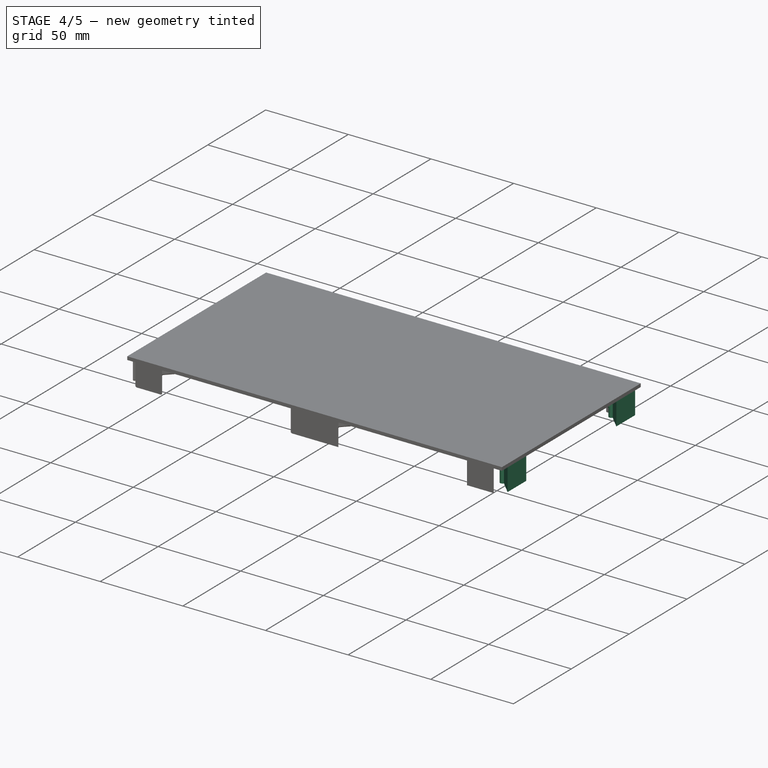
[diagram: stage 4 of 5 — iso view after this stage's code; geometry added in this stage tinted green]
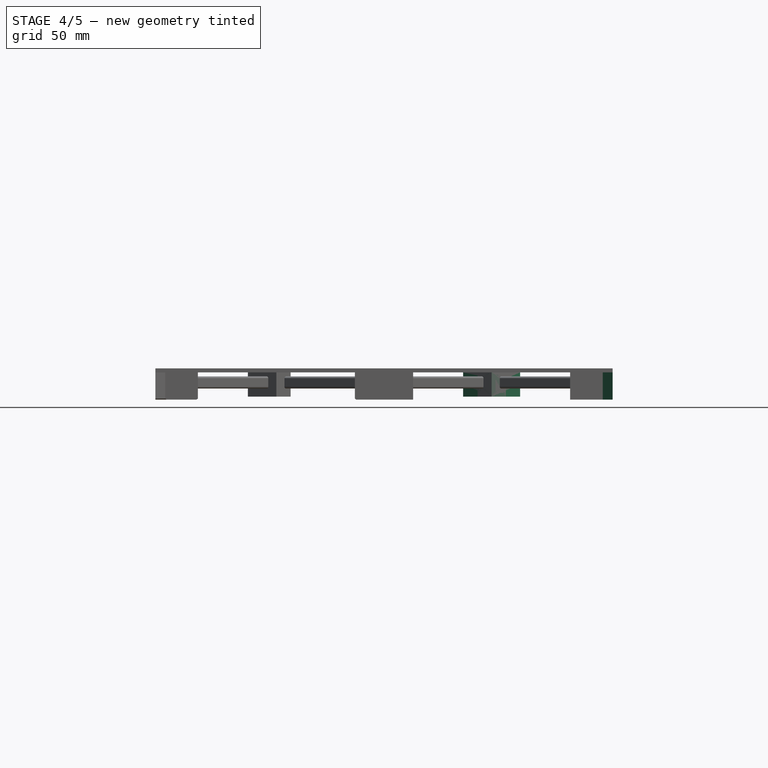
[diagram: stage 4 of 5 — front view after this stage's code; geometry added in this stage tinted green]
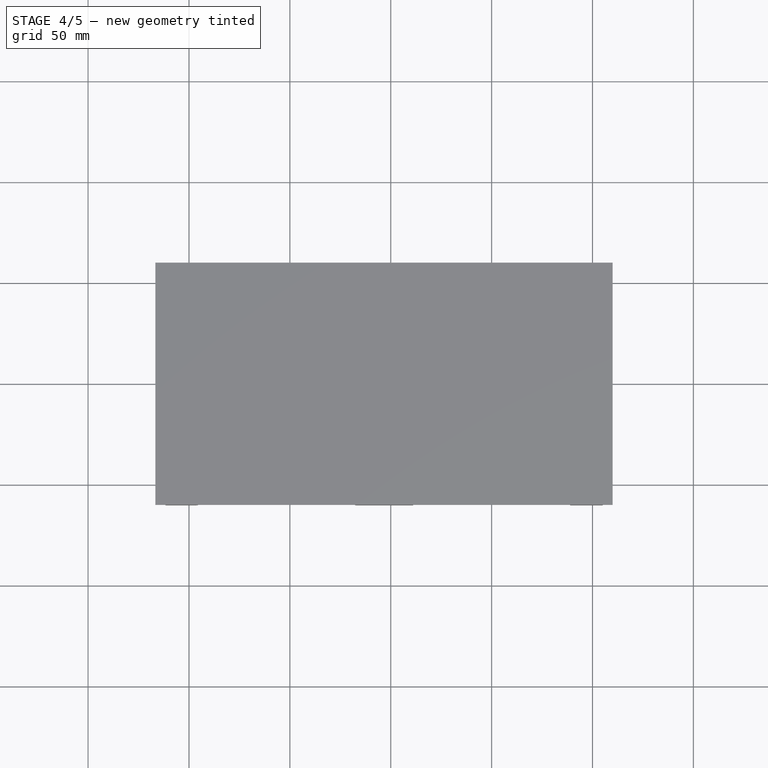
[diagram: stage 4 of 5 — top view after this stage's code; geometry added in this stage tinted green]
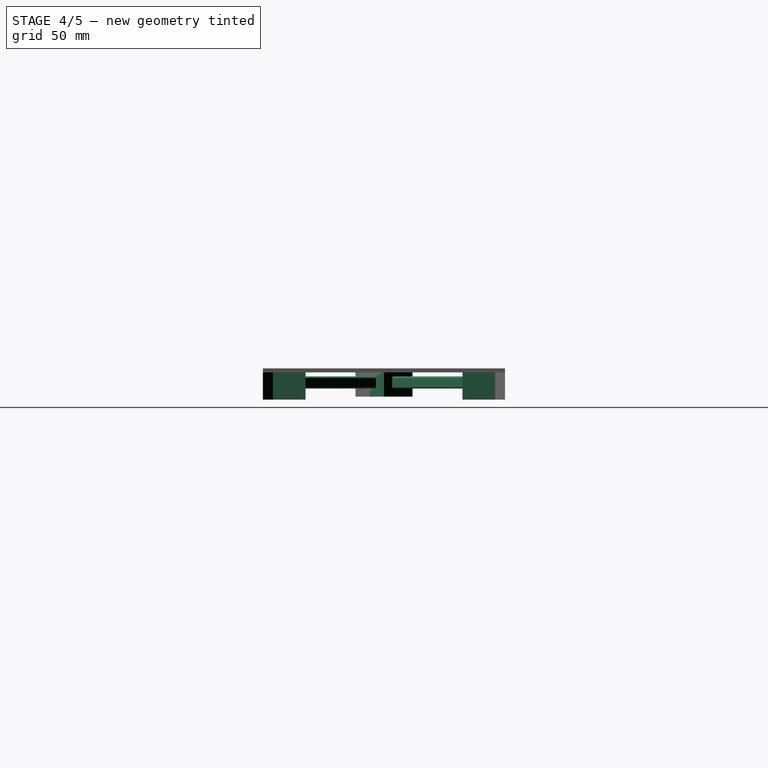
[diagram: stage 4 of 5 — right view after this stage's code; geometry added in this stage tinted green]
FEATURE [PartDesign::Body] Body001  label="Frontpanel"
  Group = -> [Sketch005,Pad001,Sketch006,Hole]
  Origin = -> Origin001
  Tip = -> Hole
FEATURE [Sketcher::SketchObject] Sketch007
  MapMode = 5
  Support = -> [XY_Plane002]
  sketch-geometry (5):
    g0: LineSegment StartX=-60 StartY=60 StartZ=0 EndX=-60 EndY=-60 EndZ=0
    g1: LineSegment StartX=-60 StartY=-60 StartZ=0 EndX=60 EndY=-60 EndZ=0
    g2: LineSegment StartX=60 StartY=-60 StartZ=0 EndX=60 EndY=60 EndZ=0
    g3: LineSegment StartX=60 StartY=60 StartZ=0 EndX=-60 EndY=60 EndZ=0
    g4: Circle [constr] CenterX=0 CenterY=0 CenterZ=0 NormalX=0 NormalY=0 NormalZ=1 AngleXU=0 Radius=84.8528
  constraints (14):
    c: Coincident(g0,g1)
    c: Coincident(g1,g2)
    c: Coincident(g2,g3)
    c: Coincident(g3,g0)
    c: Equal(g0,g1)
    c: Equal(g0,g2)
    c: Equal(g0,g3)
    c: PointOnObject(g0,g4)
    c: PointOnObject(g1,g4)
    c: PointOnObject(g2,g4)
    c: PointOnObject(g3,g4)
    c: Coincident(g4,g-1)
    c: Horizontal(g3)
    c: DistanceX(g3,g3) = 120
FEATURE [PartDesign::Pad] Pad002
  Length = 2
  Length2 = 100
  Profile = -> Sketch007
  Refine = true
  Type = 0
FEATURE [Sketcher::SketchObject] Sketch008
  ExternalGeometry = -> [Pad002]
  MapMode = 5
  Placement = pos=(0,0,0) rot=(1,0,0;3.14159rad)
  Support = -> [Pad002]
  expr: Constraints[34] = 3 + 0.15
  expr: Constraints[8] = 53.3 - 1.5 - 0.35
  sketch-geometry (12):
    g0: LineSegment StartX=-55.0741 StartY=60 StartZ=0 EndX=-38.9259 EndY=60 EndZ=0
    g1: LineSegment StartX=-55.0741 StartY=60 StartZ=0 EndX=-47.85 EndY=52.7759 EndZ=0
    g2: LineSegment StartX=-38.9259 StartY=60 StartZ=0 EndX=-46.15 EndY=52.7759 EndZ=0
    g3: ArcOfCircle CenterX=-47 CenterY=51.45 CenterZ=0 NormalX=0 NormalY=0 NormalZ=1 AngleXU=0 Radius=1.575 StartAngle=2.14086 EndAngle=7.28392
    g4: LineSegment [constr] StartX=-47.85 StartY=52.7759 StartZ=0 EndX=-46.15 EndY=52.7759 EndZ=0
    g5: LineSegment StartX=38.9259 StartY=60 StartZ=0 EndX=46.15 EndY=52.7759 EndZ=0
    g6: LineSegment StartX=55.0741 StartY=60 StartZ=0 EndX=47.85 EndY=52.7759 EndZ=0
    g7: LineSegment StartX=38.9259 StartY=60 StartZ=0 EndX=55.0741 EndY=60 EndZ=0
    g8: LineSegment [constr] StartX=46.15 StartY=52.7759 StartZ=0 EndX=47.85 EndY=52.7759 EndZ=0
    g9: ArcOfCircle CenterX=47 CenterY=51.45 CenterZ=0 NormalX=0 NormalY=0 NormalZ=1 AngleXU=0 Radius=1.575 StartAngle=2.14086 EndAngle=7.28392
    g10: LineSegment [constr] StartX=-47 StartY=51.45 StartZ=0 EndX=0 EndY=51.45 EndZ=0
    g11: LineSegment [constr] StartX=0 StartY=51.45 StartZ=0 EndX=47 EndY=51.45 EndZ=0
  constraints (35):
    c: PointOnObject(g0,g-3)
    c: PointOnObject(g0,g-3)
    c: Coincident(g1,g0)
    c: Coincident(g2,g0)
    c: Coincident(g3,g1)
    c: Coincident(g3,g2)
    c: Coincident(g4,g1)
    c: Coincident(g4,g2)
    c: DistanceY(g-1,g3) = 51.45
    c: PointOnObject(g5,g-3)
    c: PointOnObject(g6,g-3)
    c: Coincident(g7,g5)
    c: Coincident(g7,g6)
    c: Coincident(g8,g5)
    c: Coincident(g8,g6)
    c: Horizontal(g8)
    c: Coincident(g9,g5)
    c: Coincident(g9,g6)
    c: Equal(g3,g9)
    c: Coincident(g10,g3)
    c: PointOnObject(g10,g-2)
    c: Horizontal(g10)
    c: Coincident(g11,g10)
    c: Coincident(g11,g9)
    c: Equal(g10,g11)
    c: DistanceX(g3,g9) = 94
    c: Equal(g2,g1)
    c: DistanceX(g4,g4) = 1.7
    c: Horizontal(g4)
    c: Angle(g1,g0) = 0.785398
    c: Horizontal(g11)
    c: Equal(g8,g4)
    c: Equal(g6,g5)
    c: Equal(g5,g2)
    c: Diameter(g3) = 3.15
FEATURE [PartDesign::Pad] Pad003
  BaseFeature = -> Pad002
  Length = 13.5
  Length2 = 100
  Profile = -> Sketch008
  Refine = true
  Type = 0
FEATURE [PartDesign::PolarPattern] PolarPattern
  Angle = 360
  Axis = -> Z_Axis002
  BaseFeature = -> Pad003
  Occurrences = 4
  Originals = -> [Pad003]
  Refine = true
FEATURE [Sketcher::SketchObject] Sketch002
  MapMode = 5
  Placement = pos=(0,0,0) rot=(1,0,0;3.14159rad)
  Support = -> [PolarPattern]
  sketch-geometry (5):
    g0: LineSegment StartX=0 StartY=14.1421 StartZ=0 EndX=-14.1421 EndY=-7.46e-14 EndZ=0
    g1: LineSegment StartX=-14.1421 StartY=-7.46e-14 StartZ=0 EndX=1.42e-14 EndY=-14.1421 EndZ=0
    g2: LineSegment StartX=1.42e-14 StartY=-14.1421 StartZ=0 EndX=14.1421 EndY=-7.1e-15 EndZ=0
    g3: LineSegment StartX=14.1421 StartY=-7.1e-15 StartZ=0 EndX=0 EndY=14.1421 EndZ=0
    g4: Circle [constr] CenterX=0 CenterY=0 CenterZ=0 NormalX=0 NormalY=0 NormalZ=1 AngleXU=0 Radius=14.1421
  constraints (14):
    c: Coincident(g0,g1)
    c: Coincident(g1,g2)
    c: Coincident(g2,g3)
    c: Coincident(g3,g0)
    c: Equal(g0,g1)
    c: Equal(g0,g2)
    c: Equal(g0,g3)
    c: PointOnObject(g0,g4)
    c: PointOnObject(g1,g4)
    c: PointOnObject(g2,g4)
    c: PointOnObject(g3,g4)
    c: Coincident(g4,g-1)
    c: PointOnObject(g0,g-2)
    c: Distance(g0) = 20
FEATURE [PartDesign::Pad] Pad004
  BaseFeature = -> PolarPattern
  Length = 12
  Length2 = 100
  Profile = -> Sketch002
  Refine = true
  Type = 0
FEATURE [Sketcher::SketchObject] Sketch011
  MapMode = 5
  Support = -> [XY_Plane003]
  sketch-geometry (5):
    g0: LineSegment StartX=-60 StartY=60 StartZ=0 EndX=-60 EndY=-60 EndZ=0
    g1: LineSegment StartX=-60 StartY=-60 StartZ=0 EndX=60 EndY=-60 EndZ=0
    g2: LineSegment StartX=60 StartY=-60 StartZ=0 EndX=60 EndY=60 EndZ=0
    g3: LineSegment StartX=60 StartY=60 StartZ=0 EndX=-60 EndY=60 EndZ=0
    g4: Circle [constr] CenterX=0 CenterY=0 CenterZ=0 NormalX=0 NormalY=0 NormalZ=1 AngleXU=0 Radius=84.8528
  constraints (14):
    c: Coincident(g0,g1)
    c: Coincident(g1,g2)
    c: Coincident(g2,g3)
    c: Coincident(g3,g0)
    c: Equal(g0,g1)
    c: Equal(g0,g2)
    c: Equal(g0,g3)
    c: PointOnObject(g0,g4)
    c: PointOnObject(g1,g4)
    c: PointOnObject(g2,g4)
    c: PointOnObject(g3,g4)
    c: Coincident(g4,g-1)
    c: Horizontal(g3)
    c: DistanceX(g3,g3) = 120
FEATURE [PartDesign::Pad] Pad006
  Length = 2
  Length2 = 100
  Profile = -> Sketch011
  Refine = true
  Type = 0
FEATURE [Sketcher::SketchObject] Sketch012
  ExternalGeometry = -> [Pad006]
  MapMode = 5
  Placement = pos=(0,0,0) rot=(1,0,0;3.14159rad)
  Support = -> [Pad006]
  expr: Constraints[34] = 3 + 0.15
  expr: Constraints[8] = 53.3 - 1.5 - 0.35
  sketch-geometry (12):
    g0: LineSegment StartX=-55.0741 StartY=60 StartZ=0 EndX=-38.9259 EndY=60 EndZ=0
    g1: LineSegment StartX=-55.0741 StartY=60 StartZ=0 EndX=-47.85 EndY=52.7759 EndZ=0
    g2: LineSegment StartX=-38.9259 StartY=60 StartZ=0 EndX=-46.15 EndY=52.7759 EndZ=0
    g3: ArcOfCircle CenterX=-47 CenterY=51.45 CenterZ=0 NormalX=0 NormalY=0 NormalZ=1 AngleXU=0 Radius=1.575 StartAngle=2.14086 EndAngle=7.28392
    g4: LineSegment [constr] StartX=-47.85 StartY=52.7759 StartZ=0 EndX=-46.15 EndY=52.7759 EndZ=0
    g5: LineSegment StartX=38.9259 StartY=60 StartZ=0 EndX=46.15 EndY=52.7759 EndZ=0
    g6: LineSegment StartX=55.0741 StartY=60 StartZ=0 EndX=47.85 EndY=52.7759 EndZ=0
    g7: LineSegment StartX=38.9259 StartY=60 StartZ=0 EndX=55.0741 EndY=60 EndZ=0
    g8: LineSegment [constr] StartX=46.15 StartY=52.7759 StartZ=0 EndX=47.85 EndY=52.7759 EndZ=0
    g9: ArcOfCircle CenterX=47 CenterY=51.45 CenterZ=0 NormalX=0 NormalY=0 NormalZ=1 AngleXU=0 Radius=1.575 StartAngle=2.14086 EndAngle=7.28392
    g10: LineSegment [constr] StartX=-47 StartY=51.45 StartZ=0 EndX=0 EndY=51.45 EndZ=0
    g11: LineSegment [constr] StartX=0 StartY=51.45 StartZ=0 EndX=47 EndY=51.45 EndZ=0
  constraints (35):
    c: PointOnObject(g0,g-3)
    c: PointOnObject(g0,g-3)
    c: Coincident(g1,g0)
    c: Coincident(g2,g0)
    c: Coincident(g3,g1)
    c: Coincident(g3,g2)
    c: Coincident(g4,g1)
    c: Coincident(g4,g2)
    c: DistanceY(g-1,g3) = 51.45
    c: PointOnObject(g5,g-3)
    c: PointOnObject(g6,g-3)
    c: Coincident(g7,g5)
    c: Coincident(g7,g6)
    c: Coincident(g8,g5)
    c: Coincident(g8,g6)
    c: Horizontal(g8)
    c: Coincident(g9,g5)
    c: Coincident(g9,g6)
    c: Equal(g3,g9)
    c: Coincident(g10,g3)
    c: PointOnObject(g10,g-2)
    c: Horizontal(g10)
    c: Coincident(g11,g10)
    c: Coincident(g11,g9)
    c: Equal(g10,g11)
    c: DistanceX(g3,g9) = 94
    c: Equal(g2,g1)
    c: DistanceX(g4,g4) = 1.7
    c: Horizontal(g4)
    c: Angle(g1,g0) = 0.785398
    c: Horizontal(g11)
    c: Equal(g8,g4)
    c: Equal(g6,g5)
    c: Equal(g5,g2)
    c: Diameter(g3) = 3.15
FEATURE [PartDesign::Pad] Pad007
  BaseFeature = -> Pad006
  Length = 13.5
  Length2 = 100
  Profile = -> Sketch012
  Refine = true
  Type = 0
FEATURE [PartDesign::PolarPattern] PolarPattern003
  Angle = 360
  Axis = -> Z_Axis003
  BaseFeature = -> Pad007
  Occurrences = 4
  Originals = -> [Pad007]
  Refine = true
FEATURE [Sketcher::SketchObject] Sketch009
  MapMode = 5
  Placement = pos=(0,0,0) rot=(1,0,0;3.14159rad)
  Support = -> [PolarPattern003]
  sketch-geometry (5):
    g0: LineSegment StartX=0 StartY=14.1421 StartZ=0 EndX=-14.1421 EndY=-7.46e-14 EndZ=0
    g1: LineSegment StartX=-14.1421 StartY=-7.46e-14 StartZ=0 EndX=1.42e-14 EndY=-14.1421 EndZ=0
    g2: LineSegment StartX=1.42e-14 StartY=-14.1421 StartZ=0 EndX=14.1421 EndY=-7.1e-15 EndZ=0
    g3: LineSegment StartX=14.1421 StartY=-7.1e-15 StartZ=0 EndX=0 EndY=14.1421 EndZ=0
    g4: Circle [constr] CenterX=0 CenterY=0 CenterZ=0 NormalX=0 NormalY=0 NormalZ=1 AngleXU=0 Radius=14.1421
  constraints (14):
    c: Coincident(g0,g1)
    c: Coincident(g1,g2)
    c: Coincident(g2,g3)
    c: Coincident(g3,g0)
    c: Equal(g0,g1)
    c: Equal(g0,g2)
    c: Equal(g0,g3)
    c: PointOnObject(g0,g4)
    c: PointOnObject(g1,g4)
    c: PointOnObject(g2,g4)
    c: PointOnObject(g3,g4)
    c: Coincident(g4,g-1)
    c: PointOnObject(g0,g-2)
    c: Distance(g0) = 20
FEATURE [PartDesign::Pad] Pad009
  BaseFeature = -> PolarPattern003
  Length = 12
  Length2 = 100
  Profile = -> Sketch009
  Refine = true
  Type = 0
FEATURE [Sketcher::SketchObject] Sketch010
  MapMode = 5
  Placement = pos=(7.07107,7.07107,0) rot=(0.281085,0.678598,0.678598;2.59356rad)
  Support = -> [Pad009]
  sketch-geometry (8):
    g0: ArcOfCircle CenterX=-3.325 CenterY=-3 CenterZ=0 NormalX=0 NormalY=0 NormalZ=1 AngleXU=0 Radius=1 StartAngle=2e-16 EndAngle=3.14159
    g1: ArcOfCircle CenterX=-3.325 CenterY=-7 CenterZ=0 NormalX=0 NormalY=0 NormalZ=1 AngleXU=0 Radius=1 StartAngle=3.14159 EndAngle=6.28319
    g2: LineSegment StartX=-4.325 StartY=-3 StartZ=0 EndX=-4.325 EndY=-7 EndZ=0
    g3: LineSegment StartX=-2.325 StartY=-3 StartZ=0 EndX=-2.325 EndY=-7 EndZ=0
    g4: ArcOfCircle CenterX=3.325 CenterY=-3 CenterZ=0 NormalX=0 NormalY=0 NormalZ=1 AngleXU=0 Radius=1 StartAngle=3e-16 EndAngle=3.14159
    g5: ArcOfCircle CenterX=3.325 CenterY=-7 CenterZ=0 NormalX=0 NormalY=0 NormalZ=1 AngleXU=0 Radius=1 StartAngle=3.14159 EndAngle=6.28319
    g6: LineSegment StartX=2.325 StartY=-3 StartZ=0 EndX=2.325 EndY=-7 EndZ=0
    g7: LineSegment StartX=4.325 StartY=-3 StartZ=0 EndX=4.325 EndY=-7 EndZ=0
  constraints (18):
    c: Tangent(g0,g3) = 1.5708
    c: Tangent(g0,g2) = -1.5708
    c: Tangent(g2,g1) = -1.5708
    c: Tangent(g3,g1) = 1.5708
    c: Vertical(g2)
    c: Equal(g0,g1)
    c: Tangent(g4,g7) = 1.5708
    c: Tangent(g4,g6) = -1.5708
    c: Tangent(g6,g5) = -1.5708
    c: Tangent(g7,g5) = 1.5708
    c: Equal(g4,g5)
    c: Symmetric(g0,g4,g-2)
    c: Symmetric(g5,g1,g-2)
    c: Radius(g5) = 1
    c: Equal(g5,g1)
    c: DistanceY(g3,g3) = 4
    c: DistanceX(g0,g-1) = 3.325
    c: DistanceY(g0,g-1) = 3
FEATURE [PartDesign::Pad] Pad008
  BaseFeature = -> Pad009
  Length = 60
  Length2 = 100
  Profile = -> Sketch010
  Refine = true
  Type = 0
FEATURE [PartDesign::PolarPattern] PolarPattern002
  Angle = 360
  Axis = -> Z_Axis003
  BaseFeature = -> Pad008
  Occurrences = 4
  Originals = -> [Pad008]
  Refine = true
FEATURE [PartDesign::Chamfer] Chamfer002
  Base = -> PolarPattern002 [Edge101,Edge94,Edge103,Edge114,Edge125,Edge132,Edge84,Edge85,Edge59,Edge60,Edge91,Edge89,Edge64,Edge66,Edge123,Edge113]
  BaseFeature = -> PolarPattern002
  Size = 0.5
FEATURE [PartDesign::Chamfer] Chamfer003
  Base = -> Chamfer002 [Edge156,Edge175,Edge141,Edge117,Edge170,Edge188,Edge104,Edge202]
  BaseFeature = -> Chamfer002
  Size = 0.5
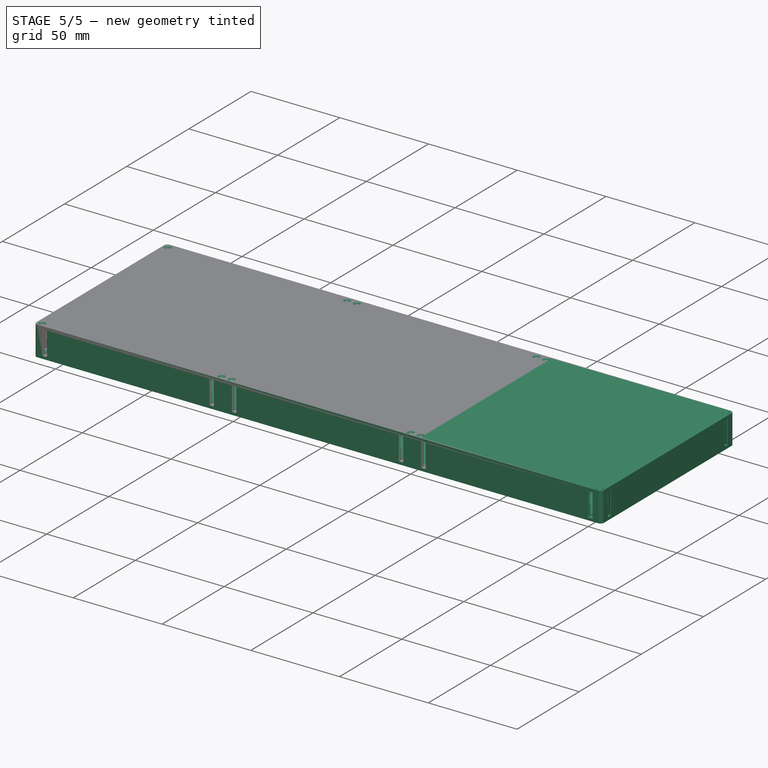
[diagram: stage 5 of 5 — iso view after this stage's code; geometry added in this stage tinted green]
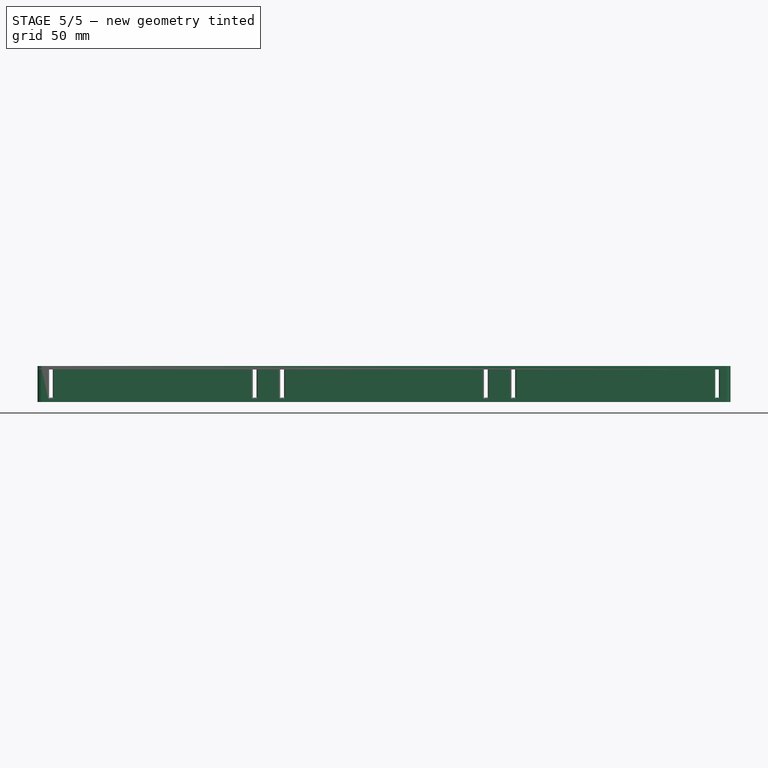
[diagram: stage 5 of 5 — front view after this stage's code; geometry added in this stage tinted green]
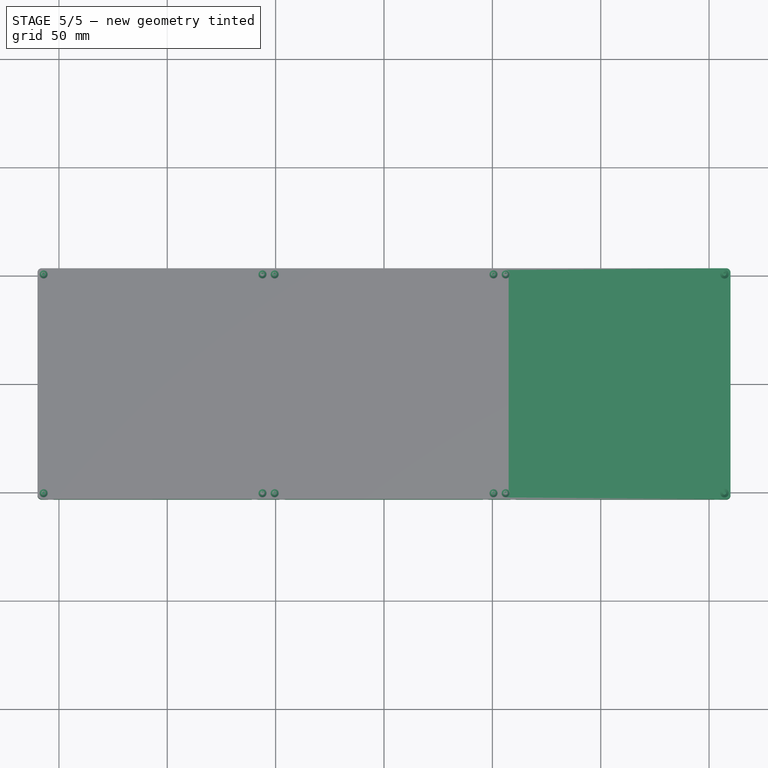
[diagram: stage 5 of 5 — top view after this stage's code; geometry added in this stage tinted green]
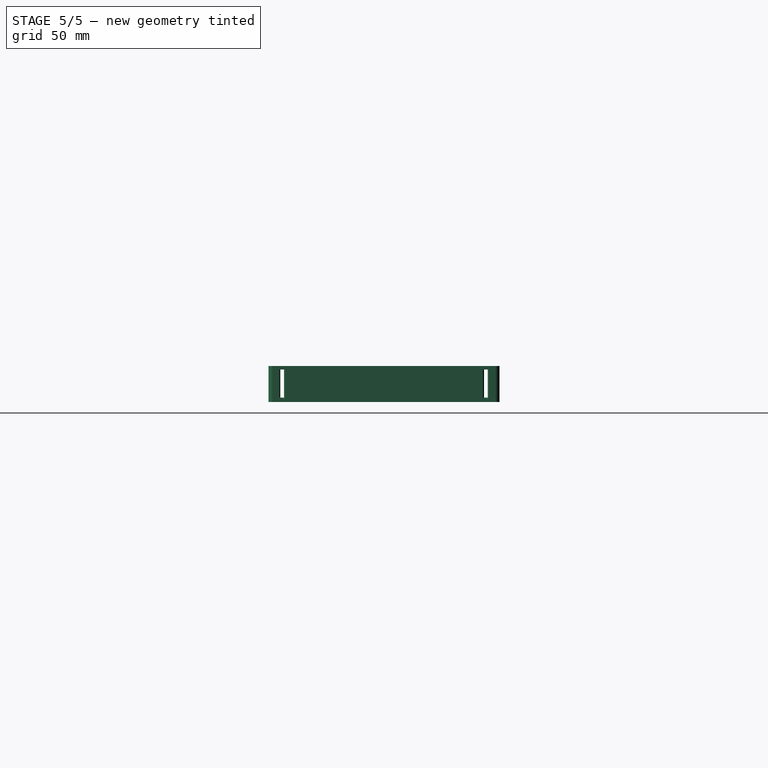
[diagram: stage 5 of 5 — right view after this stage's code; geometry added in this stage tinted green]
FEATURE [App::VRMLObject] keyboard_detailed
  Placement = pos=(-205,112,-10) rot=(0,0,1;0rad)
  Resources = keyboard_detailed/shapes3D/R_0805.wrl | keyboard_detailed/shapes3D/C_0805.wrl | keyboard_detailed/shapes3D/crystal-4pad.wrl | keyboard_detailed/shapes3D/cherrymx.wrl | keyboard_detailed/shapes3D/usbmini.wrl | keyboard_detailed/shapes3D/ipc_tqfp.wrl | keyboard_detailed/shapes3D/dtsm.wrl
FEATURE [Sketcher::SketchObject] Sketch
  MapMode = 5
  Support = -> [XY_Plane]
  sketch-geometry (11):
    g0: LineSegment StartX=-159.9 StartY=53.3 StartZ=0 EndX=159.9 EndY=53.3 EndZ=0
    g1: LineSegment StartX=159.9 StartY=53.3 StartZ=0 EndX=159.9 EndY=-53.3 EndZ=0
    g2: LineSegment StartX=159.9 StartY=-53.3 StartZ=0 EndX=-159.9 EndY=-53.3 EndZ=0
    g3: LineSegment StartX=-159.9 StartY=-53.3 StartZ=0 EndX=-159.9 EndY=53.3 EndZ=0
    g4: LineSegment [constr] StartX=-157.9 StartY=51.3 StartZ=0 EndX=157.9 EndY=51.3 EndZ=0
    g5: LineSegment [constr] StartX=157.9 StartY=51.3 StartZ=0 EndX=157.9 EndY=-51.3 EndZ=0
    g6: LineSegment [constr] StartX=157.9 StartY=-51.3 StartZ=0 EndX=-157.9 EndY=-51.3 EndZ=0
    g7: LineSegment [constr] StartX=-157.9 StartY=-51.3 StartZ=0 EndX=-157.9 EndY=51.3 EndZ=0
    g8: LineSegment [constr] StartX=-157.9 StartY=51.3 StartZ=0 EndX=0 EndY=0 EndZ=0
    g9: LineSegment [constr] StartX=0 StartY=0 StartZ=0 EndX=157.9 EndY=51.3 EndZ=0
    g10: LineSegment [constr] StartX=0 StartY=0 StartZ=0 EndX=-157.9 EndY=-51.3 EndZ=0
  constraints (30):
    c: Coincident(g0,g1)
    c: Coincident(g1,g2)
    c: Coincident(g2,g3)
    c: Coincident(g3,g0)
    c: Horizontal(g0)
    c: Horizontal(g2)
    c: Vertical(g1)
    c: Vertical(g3)
    c: DistanceY(g3,g3) = 106.6
    c: DistanceX(g0,g0) = 319.8
    c: Coincident(g4,g5)
    c: Coincident(g5,g6)
    c: Coincident(g6,g7)
    c: Coincident(g7,g4)
    c: Horizontal(g4)
    c: Horizontal(g6)
    c: Vertical(g5)
    c: Vertical(g7)
    c: DistanceX(g0,g4) = 2
    c: DistanceY(g4,g0) = 2
    c: DistanceX(g5,g1) = 2
    c: DistanceY(g1,g5) = 2
    c: Coincident(g8,g4)
    c: Coincident(g8,g-1)
    c: Coincident(g9,g-1)
    c: Coincident(g9,g4)
    c: Coincident(g10,g-1)
    c: Coincident(g10,g6)
    c: Equal(g10,g8)
    c: Equal(g8,g9)
FEATURE [PartDesign::Pad] Pad
  Length = 15
  Length2 = 100
  Profile = -> Sketch
  Reversed = true
  Type = 0
FEATURE [Sketcher::SketchObject] Sketch001
  MapMode = 5
  Support = -> [Pad]
  expr: Constraints[17] = 106.6 - 4
  expr: Constraints[16] = 106.6 * 3 - 4
  sketch-geometry (7):
    g0: LineSegment StartX=-157.9 StartY=51.3 StartZ=0 EndX=157.9 EndY=51.3 EndZ=0
    g1: LineSegment StartX=157.9 StartY=51.3 StartZ=0 EndX=157.9 EndY=-51.3 EndZ=0
    g2: LineSegment StartX=157.9 StartY=-51.3 StartZ=0 EndX=-157.9 EndY=-51.3 EndZ=0
    g3: LineSegment StartX=-157.9 StartY=-51.3 StartZ=0 EndX=-157.9 EndY=51.3 EndZ=0
    g4: LineSegment [constr] StartX=-157.9 StartY=51.3 StartZ=0 EndX=0 EndY=0 EndZ=0
    g5: LineSegment [constr] StartX=157.9 StartY=51.3 StartZ=0 EndX=0 EndY=0 EndZ=0
    g6: LineSegment [constr] StartX=-157.9 StartY=-51.3 StartZ=0 EndX=0 EndY=0 EndZ=0
  constraints (18):
    c: Coincident(g0,g1)
    c: Coincident(g1,g2)
    c: Coincident(g2,g3)
    c: Coincident(g3,g0)
    c: Horizontal(g0)
    c: Horizontal(g2)
    c: Vertical(g1)
    c: Vertical(g3)
    c: Coincident(g4,g0)
    c: Coincident(g4,g-1)
    c: Coincident(g5,g0)
    c: Coincident(g5,g-1)
    c: Coincident(g6,g2)
    c: Coincident(g6,g-1)
    c: Equal(g6,g4)
    c: Equal(g4,g5)
    c: DistanceX(g0,g0) = 315.8
    c: DistanceY(g3,g3) = 102.6
FEATURE [PartDesign::Pocket] Pocket
  BaseFeature = -> Pad
  Length = 13
  Length2 = 100
  Profile = -> Sketch001
  Type = 0
FEATURE [PartDesign::Fillet] Fillet
  Base = -> Pocket [Edge5,Edge1,Edge2,Edge8]
  BaseFeature = -> Pocket
  Radius = 2
FEATURE [Sketcher::SketchObject] Sketch005
  MapMode = 5
  Support = -> [XY_Plane001]
  expr: Constraints[25] = 106.6 * 1 - 4
  expr: Constraints[24] = 106.6 * 3 - 4
  sketch-geometry (11):
    g0: LineSegment StartX=-157.9 StartY=53.3 StartZ=0 EndX=157.9 EndY=53.3 EndZ=0
    g1: LineSegment StartX=159.9 StartY=51.3 StartZ=0 EndX=159.9 EndY=-51.3 EndZ=0
    g2: LineSegment StartX=157.9 StartY=-53.3 StartZ=0 EndX=-157.9 EndY=-53.3 EndZ=0
    g3: LineSegment StartX=-159.9 StartY=-51.3 StartZ=0 EndX=-159.9 EndY=51.3 EndZ=0
    g4: ArcOfCircle CenterX=-157.9 CenterY=51.3 CenterZ=0 NormalX=0 NormalY=0 NormalZ=1 AngleXU=0 Radius=2 StartAngle=1.5708 EndAngle=3.14159
    g5: ArcOfCircle CenterX=157.9 CenterY=51.3 CenterZ=0 NormalX=0 NormalY=0 NormalZ=1 AngleXU=0 Radius=2 StartAngle=0 EndAngle=1.5708
    g6: ArcOfCircle CenterX=157.9 CenterY=-51.3 CenterZ=0 NormalX=0 NormalY=0 NormalZ=1 AngleXU=0 Radius=2 StartAngle=4.71239 EndAngle=6.28319
    g7: ArcOfCircle CenterX=-157.9 CenterY=-51.3 CenterZ=0 NormalX=0 NormalY=0 NormalZ=1 AngleXU=0 Radius=2 StartAngle=3.14159 EndAngle=4.71239
    g8: LineSegment [constr] StartX=-157.9 StartY=51.3 StartZ=0 EndX=0 EndY=0 EndZ=0
    g9: LineSegment [constr] StartX=157.9 StartY=51.3 StartZ=0 EndX=0 EndY=0 EndZ=0
    g10: LineSegment [constr] StartX=0 StartY=0 StartZ=0 EndX=157.9 EndY=-51.3 EndZ=0
  constraints (26):
    c: Horizontal(g0)
    c: Horizontal(g2)
    c: Vertical(g1)
    c: Vertical(g3)
    c: Tangent(g3,g4) = 1.5708
    c: Tangent(g0,g4) = 1.5708
    c: Tangent(g0,g5) = 1.5708
    c: Tangent(g1,g5) = 1.5708
    c: Tangent(g1,g6) = 1.5708
    c: Tangent(g2,g6) = 1.5708
    c: Tangent(g2,g7) = 1.5708
    c: Tangent(g3,g7) = 1.5708
    c: Radius(g6) = 2
    c: Equal(g6,g5)
    c: Equal(g6,g4)
    c: Equal(g6,g7)
    c: Coincident(g8,g4)
    c: Coincident(g8,g-1)
    c: Coincident(g9,g5)
    c: Coincident(g9,g-1)
    c: Coincident(g10,g-1)
    c: Coincident(g10,g6)
    c: Equal(g9,g10)
    c: Equal(g10,g8)
    c: DistanceX(g4,g5) = 315.8
    c: DistanceY(g7,g4) = 102.6
FEATURE [PartDesign::Pad] Pad001
  Length = 1.6
  Length2 = 100
  Profile = -> Sketch005
  Type = 0
FEATURE [Sketcher::SketchObject] Sketch006
  MapMode = 5
  Placement = pos=(0,0,1.6) rot=(0,0,1;0rad)
  Support = -> [Pad001]
  sketch-geometry (31):
    g0: Circle CenterX=-157.1 CenterY=50.5 CenterZ=0 NormalX=0 NormalY=0 NormalZ=1 AngleXU=0 Radius=2
    g1: Circle CenterX=-56.1 CenterY=50.5 CenterZ=0 NormalX=0 NormalY=0 NormalZ=1 AngleXU=0 Radius=2
    g2: Circle CenterX=-50.5 CenterY=50.5 CenterZ=0 NormalX=0 NormalY=0 NormalZ=1 AngleXU=0 Radius=2
    g3: Circle CenterX=50.5 CenterY=50.5 CenterZ=0 NormalX=0 NormalY=0 NormalZ=1 AngleXU=0 Radius=2
    g4: Circle CenterX=-157.1 CenterY=-50.5 CenterZ=0 NormalX=0 NormalY=0 NormalZ=1 AngleXU=0 Radius=2
    g5: Circle CenterX=-56.1 CenterY=-50.5 CenterZ=0 NormalX=0 NormalY=0 NormalZ=1 AngleXU=0 Radius=2
    g6: Circle CenterX=-50.5 CenterY=-50.5 CenterZ=0 NormalX=0 NormalY=0 NormalZ=1 AngleXU=0 Radius=2
    g7: Circle CenterX=50.5 CenterY=-50.5 CenterZ=0 NormalX=0 NormalY=0 NormalZ=1 AngleXU=0 Radius=2
    g8: LineSegment [constr] StartX=-157.1 StartY=50.5 StartZ=0 EndX=-56.1 EndY=50.5 EndZ=0
    g9: LineSegment [constr] StartX=-56.1 StartY=50.5 StartZ=0 EndX=-56.1 EndY=-50.5 EndZ=0
    g10: LineSegment [constr] StartX=-56.1 StartY=-50.5 StartZ=0 EndX=-157.1 EndY=-50.5 EndZ=0
    g11: LineSegment [constr] StartX=-157.1 StartY=-50.5 StartZ=0 EndX=-157.1 EndY=50.5 EndZ=0
    g12: LineSegment [constr] StartX=-50.5 StartY=50.5 StartZ=0 EndX=50.5 EndY=50.5 EndZ=0
    g13: LineSegment [constr] StartX=50.5 StartY=50.5 StartZ=0 EndX=50.5 EndY=-50.5 EndZ=0
    g14: LineSegment [constr] StartX=50.5 StartY=-50.5 StartZ=0 EndX=-50.5 EndY=-50.5 EndZ=0
    g15: LineSegment [constr] StartX=-50.5 StartY=-50.5 StartZ=0 EndX=-50.5 EndY=50.5 EndZ=0
    g16: LineSegment [constr] StartX=-50.5 StartY=50.5 StartZ=0 EndX=0 EndY=0 EndZ=0
    g17: LineSegment [constr] StartX=50.5 StartY=50.5 StartZ=0 EndX=0 EndY=0 EndZ=0
    g18: LineSegment [constr] StartX=0 StartY=0 StartZ=0 EndX=50.5 EndY=-50.5 EndZ=0
    g19: Circle CenterX=56.1 CenterY=50.5 CenterZ=0 NormalX=0 NormalY=0 NormalZ=1 AngleXU=0 Radius=2
    g20: Circle CenterX=157.1 CenterY=50.5 CenterZ=0 NormalX=0 NormalY=0 NormalZ=1 AngleXU=0 Radius=2
    g21: Circle CenterX=56.1 CenterY=-50.5 CenterZ=0 NormalX=0 NormalY=0 NormalZ=1 AngleXU=0 Radius=2
    g22: Circle CenterX=157.1 CenterY=-50.5 CenterZ=0 NormalX=0 NormalY=0 NormalZ=1 AngleXU=0 Radius=2
    g23: LineSegment [constr] StartX=56.1 StartY=50.5 StartZ=0 EndX=157.1 EndY=50.5 EndZ=0
    g24: LineSegment [constr] StartX=157.1 StartY=50.5 StartZ=0 EndX=157.1 EndY=-50.5 EndZ=0
    g25: LineSegment [constr] StartX=157.1 StartY=-50.5 StartZ=0 EndX=56.1 EndY=-50.5 EndZ=0
    g26: LineSegment [constr] StartX=56.1 StartY=-50.5 StartZ=0 EndX=56.1 EndY=50.5 EndZ=0
    g27: LineSegment [constr] StartX=-56.1 StartY=50.5 StartZ=0 EndX=0 EndY=0 EndZ=0
    g28: LineSegment [constr] StartX=0 StartY=0 StartZ=0 EndX=-56.1 EndY=-50.5 EndZ=0
    g29: LineSegment [constr] StartX=0 StartY=0 StartZ=0 EndX=56.1 EndY=50.5 EndZ=0
    g30: LineSegment [constr] StartX=56.1 StartY=-50.5 StartZ=0 EndX=7.1e-15 EndY=0 EndZ=0
  constraints (74):
    c: Coincident(g8,g9)
    c: Coincident(g9,g10)
    c: Coincident(g10,g11)
    c: Coincident(g11,g8)
    c: Horizontal(g8)
    c: Horizontal(g10)
    c: Vertical(g9)
    c: Vertical(g11)
    c: Coincident(g8,g0)
    c: Coincident(g9,g5)
    c: Coincident(g12,g13)
    c: Coincident(g13,g14)
    c: Coincident(g14,g15)
    c: Coincident(g15,g12)
    c: Horizontal(g12)
    c: Horizontal(g14)
    c: Vertical(g13)
    c: Vertical(g15)
    c: Coincident(g12,g2)
    c: Coincident(g13,g7)
    c: Coincident(g14,g6)
    c: Coincident(g12,g3)
    c: Coincident(g1,g8)
    c: Coincident(g4,g10)
    c: Radius(g0) = 2
    c: Equal(g0,g4)
    c: Equal(g0,g6)
    c: Equal(g0,g5)
    c: Equal(g0,g1)
    c: Equal(g0,g2)
    c: Equal(g0,g3)
    c: Equal(g0,g7)
    c: Equal(g8,g9)
    c: Equal(g9,g12)
    c: Equal(g12,g13)
    c: DistanceX(g0,g1) = 101
    c: Coincident(g16,g2)
    c: Coincident(g16,g-1)
    c: Coincident(g17,g3)
    c: Coincident(g17,g-1)
    c: Coincident(g18,g-1)
    c: Coincident(g18,g7)
    c: Equal(g18,g17)
    c: Equal(g17,g16)
    c: Coincident(g23,g24)
    c: Coincident(g24,g25)
    c: Coincident(g25,g26)
    c: Coincident(g26,g23)
    c: Horizontal(g23)
    c: Horizontal(g25)
    c: Vertical(g24)
    c: Vertical(g26)
    c: Coincident(g23,g19)
    c: Coincident(g24,g22)
    c: Coincident(g20,g23)
    c: Coincident(g21,g25)
    c: Equal(g0,g19) = 2
    c: Equal(g19,g21)
    c: Equal(g19,g22)
    c: Equal(g19,g20)
    c: Equal(g23,g24)
    c: DistanceX(g19,g20) = 101
    c: Coincident(g27,g1)
    c: Coincident(g27,g-1)
    c: Coincident(g28,g-1)
    c: Coincident(g28,g5)
    c: Coincident(g29,g-1)
    c: Coincident(g29,g19)
    c: Coincident(g30,g21)
    c: Coincident(g30,g-1)
    c: Equal(g30,g29)
    c: Equal(g29,g27)
    c: Equal(g27,g28)
    c: DistanceX(g1,g2) = 5.6
FEATURE [PartDesign::Hole] Hole
  BaseFeature = -> Pad001
  Depth = 25
  DepthType = 0
  Diameter = 1.5
  DrillPoint = 1
  DrillPointAngle = 118
  HoleCutCountersinkAngle = 90
  HoleCutDepth = 0
  HoleCutDiameter = 4
  HoleCutType = 2
  ModelActualThread = false
  Profile = -> Sketch006
  Tapered = false
  TaperedAngle = 90
  ThreadAngle = 0
  ThreadClass = 0
  ThreadCutOffInner = 0
  ThreadCutOffOuter = 0
  ThreadDirection = 0
  ThreadFit = 0
  ThreadPitch = 0
  ThreadSize = 0
  ThreadType = 0
  Threaded = false
FEATURE [Sketcher::SketchObject] Sketch003
  MapMode = 5
  Placement = pos=(7.07107,7.07107,0) rot=(0.281085,0.678598,0.678598;2.59356rad)
  Support = -> [Pad004]
  sketch-geometry (8):
    g0: ArcOfCircle CenterX=-3.325 CenterY=-3 CenterZ=0 NormalX=0 NormalY=0 NormalZ=1 AngleXU=0 Radius=1 StartAngle=2e-16 EndAngle=3.14159
    g1: ArcOfCircle CenterX=-3.325 CenterY=-7 CenterZ=0 NormalX=0 NormalY=0 NormalZ=1 AngleXU=0 Radius=1 StartAngle=3.14159 EndAngle=6.28319
    g2: LineSegment StartX=-4.325 StartY=-3 StartZ=0 EndX=-4.325 EndY=-7 EndZ=0
    g3: LineSegment StartX=-2.325 StartY=-3 StartZ=0 EndX=-2.325 EndY=-7 EndZ=0
    g4: ArcOfCircle CenterX=3.325 CenterY=-3 CenterZ=0 NormalX=0 NormalY=0 NormalZ=1 AngleXU=0 Radius=1 StartAngle=3e-16 EndAngle=3.14159
    g5: ArcOfCircle CenterX=3.325 CenterY=-7 CenterZ=0 NormalX=0 NormalY=0 NormalZ=1 AngleXU=0 Radius=1 StartAngle=3.14159 EndAngle=6.28319
    g6: LineSegment StartX=2.325 StartY=-3 StartZ=0 EndX=2.325 EndY=-7 EndZ=0
    g7: LineSegment StartX=4.325 StartY=-3 StartZ=0 EndX=4.325 EndY=-7 EndZ=0
  constraints (18):
    c: Tangent(g0,g3) = 1.5708
    c: Tangent(g0,g2) = -1.5708
    c: Tangent(g2,g1) = -1.5708
    c: Tangent(g3,g1) = 1.5708
    c: Vertical(g2)
    c: Equal(g0,g1)
    c: Tangent(g4,g7) = 1.5708
    c: Tangent(g4,g6) = -1.5708
    c: Tangent(g6,g5) = -1.5708
    c: Tangent(g7,g5) = 1.5708
    c: Equal(g4,g5)
    c: Symmetric(g0,g4,g-2)
    c: Symmetric(g5,g1,g-2)
    c: Radius(g5) = 1
    c: Equal(g5,g1)
    c: DistanceY(g3,g3) = 4
    c: DistanceX(g0,g-1) = 3.325
    c: DistanceY(g0,g-1) = 3
FEATURE [PartDesign::Pad] Pad005
  BaseFeature = -> Pad004
  Length = 60
  Length2 = 100
  Profile = -> Sketch003
  Refine = true
  Type = 0
FEATURE [PartDesign::PolarPattern] PolarPattern001
  Angle = 360
  Axis = -> Z_Axis002
  BaseFeature = -> Pad005
  Occurrences = 4
  Originals = -> [Pad005]
  Refine = true
FEATURE [PartDesign::Chamfer] Chamfer
  Base = -> PolarPattern001 [Edge101,Edge94,Edge103,Edge114,Edge125,Edge132,Edge84,Edge85,Edge59,Edge60,Edge91,Edge89,Edge64,Edge66,Edge123,Edge113]
  BaseFeature = -> PolarPattern001
  Size = 0.5
FEATURE [PartDesign::Chamfer] Chamfer001
  Base = -> Chamfer [Edge156,Edge175,Edge141,Edge117,Edge170,Edge188,Edge104,Edge202]
  BaseFeature = -> Chamfer
  Size = 0.5
FEATURE [PartDesign::Body] Body003  label="feature_magent_hole001"
  Group = -> [Sketch011,Pad006,Sketch012,Pad007,PolarPattern003,Sketch009,Pad009,Sketch010,Pad008,PolarPattern002,Chamfer002,Chamfer003]
  Origin = -> Origin003
  Tip = -> Chamfer003
FEATURE [PartDesign::Boolean] Boolean
  BaseFeature = -> Chamfer001
  Group = -> [Body003]
  Type = 0
FEATURE [Sketcher::SketchObject] Sketch013
  MapMode = 5
  Placement = pos=(0,0,0) rot=(1,0,0;3.14159rad)
  Support = -> [Boolean]
  sketch-geometry (3):
    g0: LineSegment StartX=-88.9042 StartY=88.9042 StartZ=0 EndX=0 EndY=0 EndZ=0
    g1: LineSegment StartX=0 StartY=0 StartZ=0 EndX=-88.9042 EndY=-88.9042 EndZ=0
    g2: LineSegment StartX=-88.9042 StartY=-88.9042 StartZ=0 EndX=-88.9042 EndY=88.9042 EndZ=0
  constraints (7):
    c: Coincident(g0,g-1)
    c: Coincident(g0,g1)
    c: Coincident(g1,g2)
    c: Coincident(g2,g0)
    c: Vertical(g2)
    c: Angle(g-1,g0) = 2.35619
    c: Perpendicular(g0,g1)
FEATURE [PartDesign::Pocket] Pocket001
  BaseFeature = -> Boolean
  Length = 5
  Length2 = 100
  Profile = -> Sketch013
  Reversed = true
  Type = 1
FEATURE [PartDesign::Boolean] Boolean004
  BaseFeature = -> Boolean003
  Group = -> [Body002]
  Refine = true
  Type = 0
FEATURE [PartDesign::Body] Body005  label="feature_magent_hole003"
  Group = -> [Sketch018,Pad013,Sketch021,Pad014,PolarPattern005,Sketch014,Pad016,Sketch016,Pad015,PolarPattern004,Chamfer005,Chamfer007,Boolean001,Sketch022,Pocket003,Mirrored,Boolean003,Boolean004]
  Origin = -> Origin004
  Tip = -> Boolean004
FEATURE [PartDesign::Boolean] Boolean005
  BaseFeature = -> Fillet
  Group = -> [Body005]
  Type = 1
FEATURE [PartDesign::Body] Body
  Group = -> [Sketch,Pad,Sketch001,Pocket,Fillet,Boolean005]
  Origin = -> Origin
  Tip = -> Boolean005
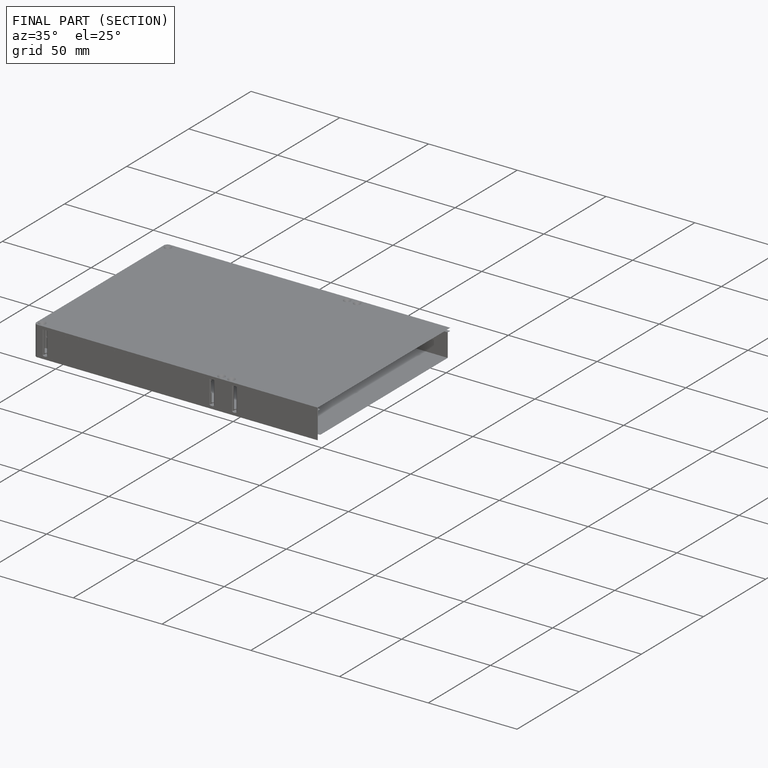
[diagram: finished part — half-section view (interior)]
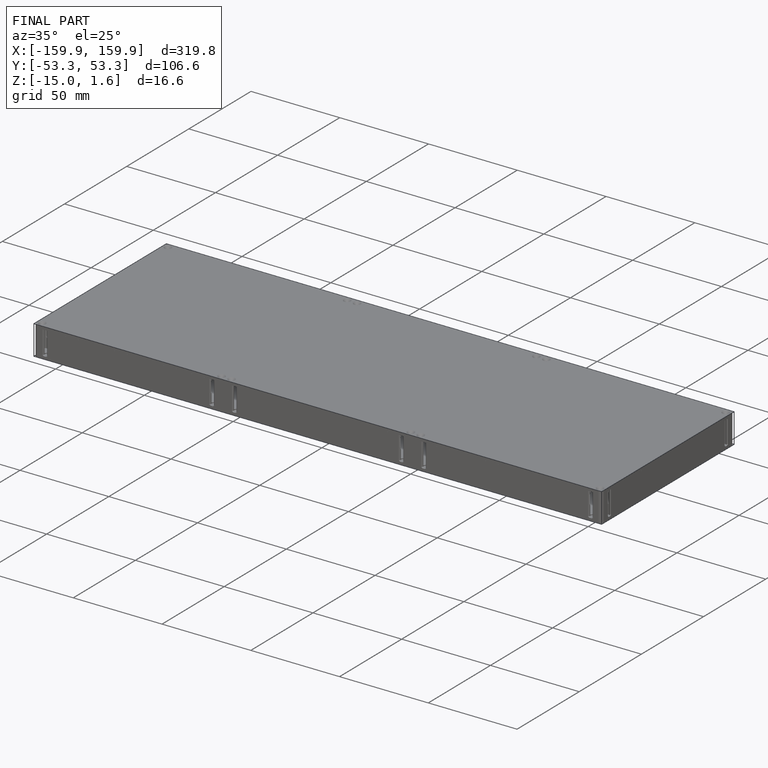
[diagram: finished part — iso view with bounding-box wireframe]
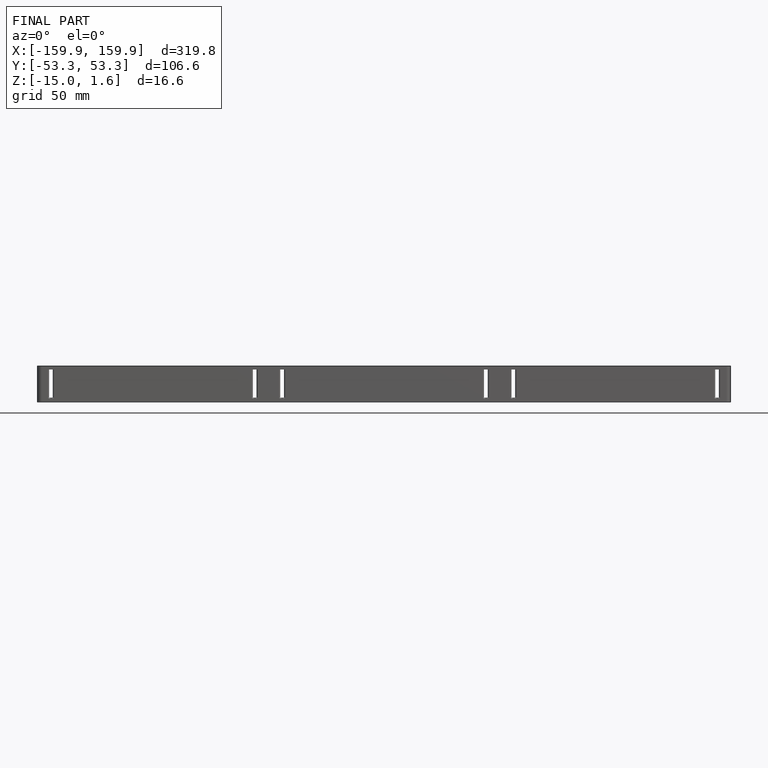
[diagram: finished part — front view with bounding-box wireframe]
